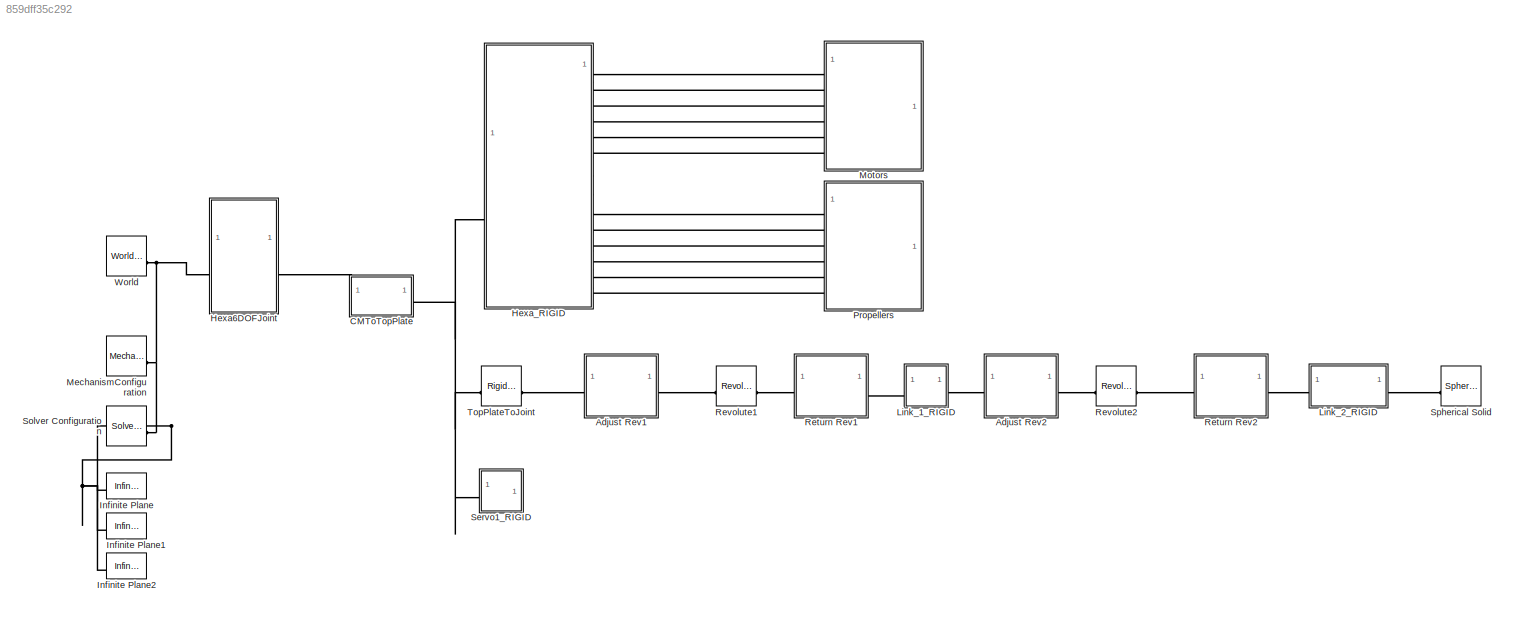
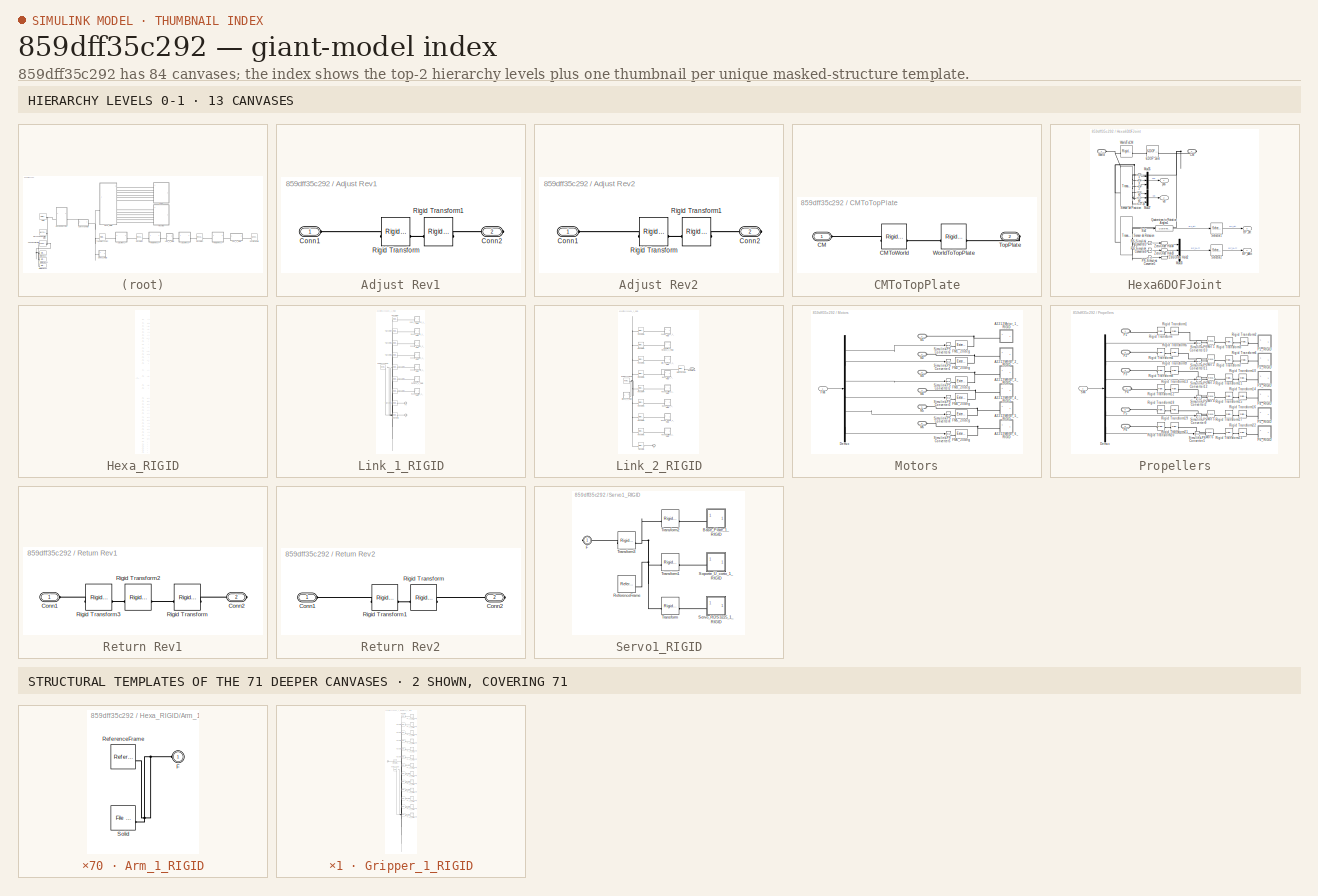
[diagram: thumbnail index - top-2 hierarchy levels (13 canvases) + 2 structural-template representatives of the remaining 71 canvases]
MODEL slx_859dff35c292
KIND model
CONFIG AbsTol = auto
CONFIG EnableMultiTasking = off
CONFIG FixedStep = auto
CONFIG MaxStep = auto
CONFIG MinStep = auto
CONFIG RelTol = 1e-3
CONFIG SampleTimeConstraint = Unconstrained
CONFIG SolverName = VariableStepAuto
CONFIG StartTime = 0.0
CONFIG StopTime = 0.0
WORKSPACE source: external: MATLAB File  (data not in archive)
BLOCK [SubSystem] Adjust Rev1
BLOCK [PMIOPort] Adjust Rev1/Conn1
  Side = Left
BLOCK [PMIOPort] Adjust Rev1/Conn2
  Port = 2
  Side = Right
BLOCK [Reference] Adjust Rev1/Rigid Transform  REF=sm_lib/Frames and
Transforms/Rigid
Transform
  SourceBlock = sm_lib/Frames and\nTransforms/Rigid\nTransform
  SourceType = Rigid\nTransform
BLOCK [Reference] Adjust Rev1/Rigid Transform1  REF=sm_lib/Frames and
Transforms/Rigid
Transform
  SourceBlock = sm_lib/Frames and\nTransforms/Rigid\nTransform
  SourceType = Rigid\nTransform
BLOCK [SubSystem] Adjust Rev2
BLOCK [PMIOPort] Adjust Rev2/Conn1
  Side = Left
BLOCK [PMIOPort] Adjust Rev2/Conn2
  Port = 2
  Side = Right
BLOCK [Reference] Adjust Rev2/Rigid Transform  REF=sm_lib/Frames and
Transforms/Rigid
Transform
  SourceBlock = sm_lib/Frames and\nTransforms/Rigid\nTransform
  SourceType = Rigid\nTransform
BLOCK [Reference] Adjust Rev2/Rigid Transform1  REF=sm_lib/Frames and
Transforms/Rigid
Transform
  SourceBlock = sm_lib/Frames and\nTransforms/Rigid\nTransform
  SourceType = Rigid\nTransform
BLOCK [SubSystem] CMToTopPlate
BLOCK [PMIOPort] CMToTopPlate/CM
  Side = Left
BLOCK [Reference] CMToTopPlate/CMToWorld  REF=sm_lib/Frames and
Transforms/Rigid
Transform
  NameLocation = top
  SourceBlock = sm_lib/Frames and\nTransforms/Rigid\nTransform
  SourceType = Rigid\nTransform
BLOCK [PMIOPort] CMToTopPlate/TopPlate
  Port = 2
  Side = Right
BLOCK [Reference] CMToTopPlate/WorldToTopPlate  REF=sm_lib/Frames and
Transforms/Rigid
Transform
  SourceBlock = sm_lib/Frames and\nTransforms/Rigid\nTransform
  SourceType = Rigid\nTransform
BLOCK [SubSystem] Hexa6DOFJoint
BLOCK [Reference] Hexa6DOFJoint/6-DOF Joint  REF=sm_lib/Joints/6-DOF Joint
  SourceBlock = sm_lib/Joints/6-DOF Joint
  SourceType = 6-DOF Joint
BLOCK [Outport] Hexa6DOFJoint/BF_att
  Port = 3
BLOCK [Outport] Hexa6DOFJoint/BF_dAtt
  Port = 4
BLOCK [PMIOPort] Hexa6DOFJoint/CM
  Port = 2
  Side = Right
BLOCK [Mux] Hexa6DOFJoint/Mux33
  DisplayOption = bar
  Inputs = 3
BLOCK [Mux] Hexa6DOFJoint/Mux35
  DisplayOption = bar
  Inputs = 3
BLOCK [Mux] Hexa6DOFJoint/Mux37
  DisplayOption = bar
  Inputs = 3
BLOCK [Reference] Hexa6DOFJoint/PS-Simulink Converter3  REF=nesl_utility/PS-Simulink
Converter
  SourceBlock = nesl_utility/PS-Simulink\nConverter
  SourceType = PS-Simulink\nConverter
BLOCK [Reference] Hexa6DOFJoint/PS-Simulink Converter4  REF=nesl_utility/PS-Simulink
Converter
  SourceBlock = nesl_utility/PS-Simulink\nConverter
  SourceType = PS-Simulink\nConverter
BLOCK [Reference] Hexa6DOFJoint/PS-Simulink Converter5  REF=nesl_utility/PS-Simulink
Converter
  SourceBlock = nesl_utility/PS-Simulink\nConverter
  SourceType = PS-Simulink\nConverter
BLOCK [Reference] Hexa6DOFJoint/Quaternions to Rotation Angles1  REF=sharedtransform/Quaternions to Rotation Angles
  AttributesFormatString = Rotation Order: %<rotationOrder>
  SourceBlock = sharedtransform/Quaternions to Rotation Angles
  SourceType = Quat2Ang
BLOCK [Selector] Hexa6DOFJoint/Selector1
  IndexOptions = Index vector (dialog)
  Indices = [3 2 1]
  InputPortWidth = 3
  OutputSizes = 1
BLOCK [Selector] Hexa6DOFJoint/Selector2
  IndexOptions = Index vector (dialog)
  Indices = [3 2 1]
  InputPortWidth = 3
  OutputSizes = 1
BLOCK [Reference] Hexa6DOFJoint/Sensor de Posicion  REF=sm_lib/Frames and
Transforms/Transform
Sensor
  SourceBlock = sm_lib/Frames and\nTransforms/Transform\nSensor
  SourceType = Transform\nSensor
BLOCK [Reference] Hexa6DOFJoint/Sensor de Rotacion  REF=sm_lib/Frames and
Transforms/Transform
Sensor
  SourceBlock = sm_lib/Frames and\nTransforms/Transform\nSensor
  SourceType = Transform\nSensor
BLOCK [Reference] Hexa6DOFJoint/Sx4  REF=nesl_utility/PS-Simulink
Converter
  NameLocation = top
  SourceBlock = nesl_utility/PS-Simulink\nConverter
  SourceType = PS-Simulink\nConverter
BLOCK [PMIOPort] Hexa6DOFJoint/World
  Side = Left
BLOCK [Reference] Hexa6DOFJoint/WorldToCM  REF=sm_lib/Frames and
Transforms/Rigid
Transform
  SourceBlock = sm_lib/Frames and\nTransforms/Rigid\nTransform
  SourceType = Rigid\nTransform
BLOCK [ZeroOrderHold] Hexa6DOFJoint/Zero-Order Hold2
  Commented = through
  NameLocation = right
  SampleTime = -1
BLOCK [ZeroOrderHold] Hexa6DOFJoint/Zero-Order Hold3
  Commented = through
  NameLocation = right
  SampleTime = -1
BLOCK [ZeroOrderHold] Hexa6DOFJoint/Zero-Order Hold4
  Commented = through
  NameLocation = right
  SampleTime = -1
BLOCK [Outport] Hexa6DOFJoint/pos
BLOCK [Outport] Hexa6DOFJoint/vel
  Port = 2
BLOCK [Reference] Hexa6DOFJoint/x  REF=nesl_utility/PS-Simulink
Converter
  NameLocation = top
  SourceBlock = nesl_utility/PS-Simulink\nConverter
  SourceType = PS-Simulink\nConverter
BLOCK [Reference] Hexa6DOFJoint/xp  REF=nesl_utility/PS-Simulink
Converter
  NameLocation = top
  SourceBlock = nesl_utility/PS-Simulink\nConverter
  SourceType = PS-Simulink\nConverter
BLOCK [Reference] Hexa6DOFJoint/y  REF=nesl_utility/PS-Simulink
Converter
  NameLocation = top
  SourceBlock = nesl_utility/PS-Simulink\nConverter
  SourceType = PS-Simulink\nConverter
BLOCK [Reference] Hexa6DOFJoint/yp  REF=nesl_utility/PS-Simulink
Converter
  NameLocation = top
  SourceBlock = nesl_utility/PS-Simulink\nConverter
  SourceType = PS-Simulink\nConverter
BLOCK [Reference] Hexa6DOFJoint/z  REF=nesl_utility/PS-Simulink
Converter
  NameLocation = top
  SourceBlock = nesl_utility/PS-Simulink\nConverter
  SourceType = PS-Simulink\nConverter
BLOCK [Reference] Hexa6DOFJoint/zp  REF=nesl_utility/PS-Simulink
Converter
  NameLocation = top
  SourceBlock = nesl_utility/PS-Simulink\nConverter
  SourceType = PS-Simulink\nConverter
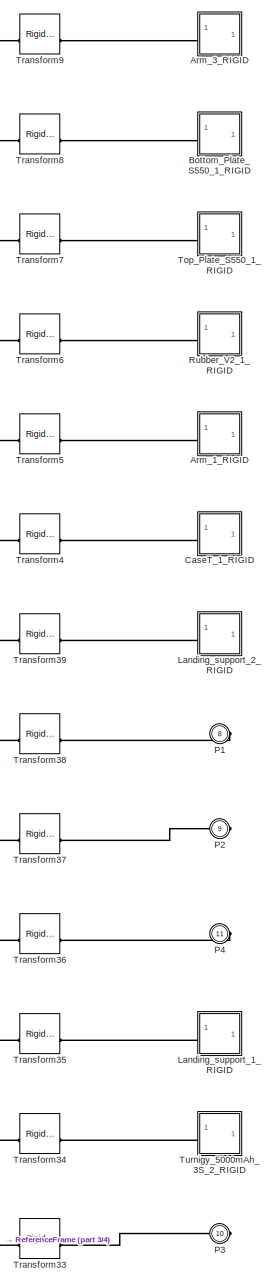
[diagram: Hexa_RIGID - part 1/4, top right region]
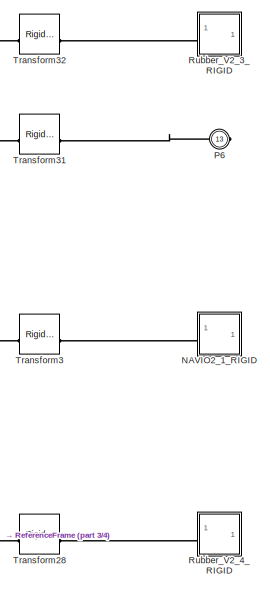
[diagram: Hexa_RIGID - part 2/4, middle right region]
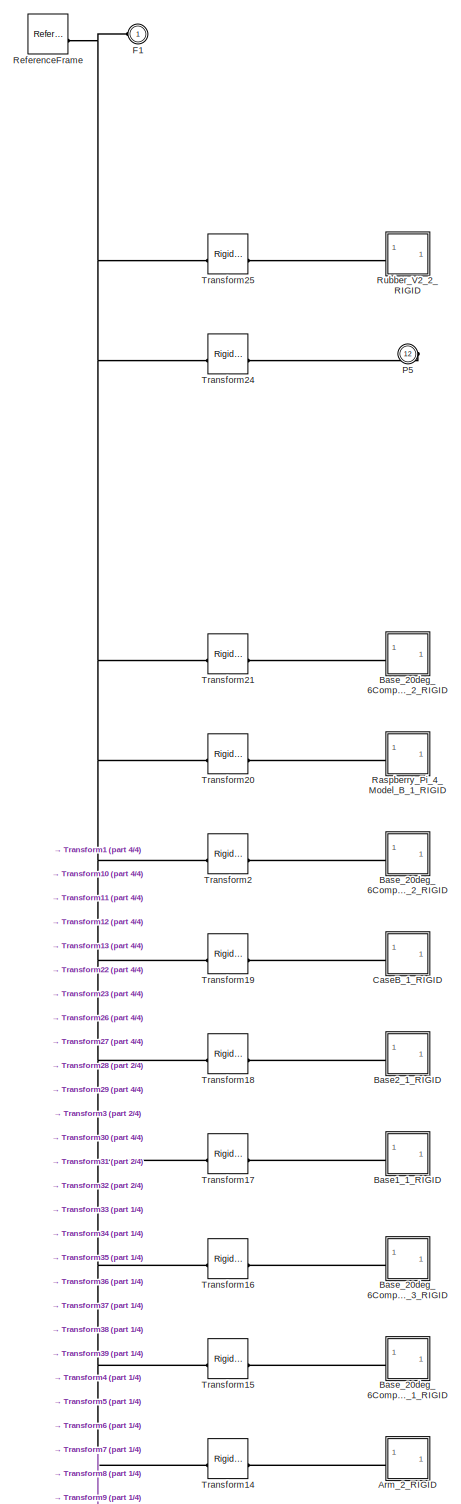
[diagram: Hexa_RIGID - part 3/4, full width, middle band]
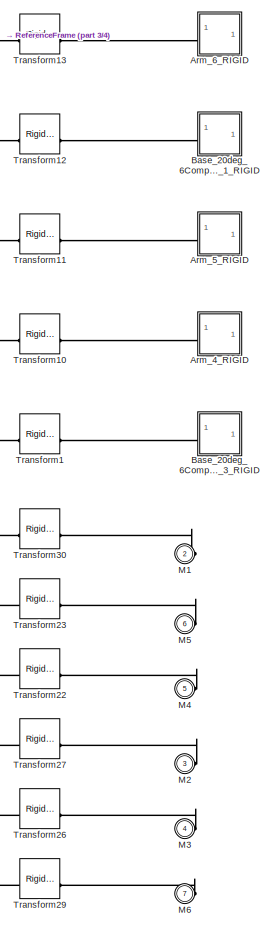
[diagram: Hexa_RIGID - part 4/4, bottom right region]
BLOCK [SubSystem] Hexa_RIGID
BLOCK [SubSystem] Hexa_RIGID/Arm_1_RIGID
BLOCK [PMIOPort] Hexa_RIGID/Arm_1_RIGID/F
  Side = Left
BLOCK [Reference] Hexa_RIGID/Arm_1_RIGID/ReferenceFrame  REF=sm_lib/Frames and
Transforms/Reference
Frame
  SourceBlock = sm_lib/Frames and\nTransforms/Reference\nFrame
  SourceType = Reference\nFrame
BLOCK [Reference] Hexa_RIGID/Arm_1_RIGID/Solid  REF=sm_lib/Body Elements/File Solid
  SourceBlock = sm_lib/Body Elements/File Solid
  SourceType = File Solid
BLOCK [SubSystem] Hexa_RIGID/Arm_2_RIGID
BLOCK [PMIOPort] Hexa_RIGID/Arm_2_RIGID/F
  Side = Left
BLOCK [Reference] Hexa_RIGID/Arm_2_RIGID/ReferenceFrame  REF=sm_lib/Frames and
Transforms/Reference
Frame
  SourceBlock = sm_lib/Frames and\nTransforms/Reference\nFrame
  SourceType = Reference\nFrame
BLOCK [Reference] Hexa_RIGID/Arm_2_RIGID/Solid  REF=sm_lib/Body Elements/File Solid
  SourceBlock = sm_lib/Body Elements/File Solid
  SourceType = File Solid
BLOCK [SubSystem] Hexa_RIGID/Arm_3_RIGID
BLOCK [PMIOPort] Hexa_RIGID/Arm_3_RIGID/F
  Side = Left
BLOCK [Reference] Hexa_RIGID/Arm_3_RIGID/ReferenceFrame  REF=sm_lib/Frames and
Transforms/Reference
Frame
  SourceBlock = sm_lib/Frames and\nTransforms/Reference\nFrame
  SourceType = Reference\nFrame
BLOCK [Reference] Hexa_RIGID/Arm_3_RIGID/Solid  REF=sm_lib/Body Elements/File Solid
  SourceBlock = sm_lib/Body Elements/File Solid
  SourceType = File Solid
BLOCK [SubSystem] Hexa_RIGID/Arm_4_RIGID
BLOCK [PMIOPort] Hexa_RIGID/Arm_4_RIGID/F
  Side = Left
BLOCK [Reference] Hexa_RIGID/Arm_4_RIGID/ReferenceFrame  REF=sm_lib/Frames and
Transforms/Reference
Frame
  SourceBlock = sm_lib/Frames and\nTransforms/Reference\nFrame
  SourceType = Reference\nFrame
BLOCK [Reference] Hexa_RIGID/Arm_4_RIGID/Solid  REF=sm_lib/Body Elements/File Solid
  SourceBlock = sm_lib/Body Elements/File Solid
  SourceType = File Solid
BLOCK [SubSystem] Hexa_RIGID/Arm_5_RIGID
BLOCK [PMIOPort] Hexa_RIGID/Arm_5_RIGID/F
  Side = Left
BLOCK [Reference] Hexa_RIGID/Arm_5_RIGID/ReferenceFrame  REF=sm_lib/Frames and
Transforms/Reference
Frame
  SourceBlock = sm_lib/Frames and\nTransforms/Reference\nFrame
  SourceType = Reference\nFrame
BLOCK [Reference] Hexa_RIGID/Arm_5_RIGID/Solid  REF=sm_lib/Body Elements/File Solid
  SourceBlock = sm_lib/Body Elements/File Solid
  SourceType = File Solid
BLOCK [SubSystem] Hexa_RIGID/Arm_6_RIGID
BLOCK [PMIOPort] Hexa_RIGID/Arm_6_RIGID/F
  Side = Left
BLOCK [Reference] Hexa_RIGID/Arm_6_RIGID/ReferenceFrame  REF=sm_lib/Frames and
Transforms/Reference
Frame
  SourceBlock = sm_lib/Frames and\nTransforms/Reference\nFrame
  SourceType = Reference\nFrame
BLOCK [Reference] Hexa_RIGID/Arm_6_RIGID/Solid  REF=sm_lib/Body Elements/File Solid
  SourceBlock = sm_lib/Body Elements/File Solid
  SourceType = File Solid
BLOCK [SubSystem] Hexa_RIGID/Base1_1_RIGID
BLOCK [PMIOPort] Hexa_RIGID/Base1_1_RIGID/F
  Side = Left
BLOCK [Reference] Hexa_RIGID/Base1_1_RIGID/ReferenceFrame  REF=sm_lib/Frames and
Transforms/Reference
Frame
  SourceBlock = sm_lib/Frames and\nTransforms/Reference\nFrame
  SourceType = Reference\nFrame
BLOCK [Reference] Hexa_RIGID/Base1_1_RIGID/Solid  REF=sm_lib/Body Elements/File Solid
  SourceBlock = sm_lib/Body Elements/File Solid
  SourceType = File Solid
BLOCK [SubSystem] Hexa_RIGID/Base2_1_RIGID
BLOCK [PMIOPort] Hexa_RIGID/Base2_1_RIGID/F
  Side = Left
BLOCK [Reference] Hexa_RIGID/Base2_1_RIGID/ReferenceFrame  REF=sm_lib/Frames and
Transforms/Reference
Frame
  SourceBlock = sm_lib/Frames and\nTransforms/Reference\nFrame
  SourceType = Reference\nFrame
BLOCK [Reference] Hexa_RIGID/Base2_1_RIGID/Solid  REF=sm_lib/Body Elements/File Solid
  SourceBlock = sm_lib/Body Elements/File Solid
  SourceType = File Solid
BLOCK [SubSystem] Hexa_RIGID/Base_20deg_6Compensation_Motor1_3_5_V2_1_RIGID
BLOCK [PMIOPort] Hexa_RIGID/Base_20deg_6Compensation_Motor1_3_5_V2_1_RIGID/F
  Side = Left
BLOCK [Reference] Hexa_RIGID/Base_20deg_6Compensation_Motor1_3_5_V2_1_RIGID/ReferenceFrame  REF=sm_lib/Frames and
Transforms/Reference
Frame
  SourceBlock = sm_lib/Frames and\nTransforms/Reference\nFrame
  SourceType = Reference\nFrame
BLOCK [Reference] Hexa_RIGID/Base_20deg_6Compensation_Motor1_3_5_V2_1_RIGID/Solid  REF=sm_lib/Body Elements/File Solid
  SourceBlock = sm_lib/Body Elements/File Solid
  SourceType = File Solid
BLOCK [SubSystem] Hexa_RIGID/Base_20deg_6Compensation_Motor1_3_5_V2_2_RIGID
BLOCK [PMIOPort] Hexa_RIGID/Base_20deg_6Compensation_Motor1_3_5_V2_2_RIGID/F
  Side = Left
BLOCK [Reference] Hexa_RIGID/Base_20deg_6Compensation_Motor1_3_5_V2_2_RIGID/ReferenceFrame  REF=sm_lib/Frames and
Transforms/Reference
Frame
  SourceBlock = sm_lib/Frames and\nTransforms/Reference\nFrame
  SourceType = Reference\nFrame
BLOCK [Reference] Hexa_RIGID/Base_20deg_6Compensation_Motor1_3_5_V2_2_RIGID/Solid  REF=sm_lib/Body Elements/File Solid
  SourceBlock = sm_lib/Body Elements/File Solid
  SourceType = File Solid
BLOCK [SubSystem] Hexa_RIGID/Base_20deg_6Compensation_Motor1_3_5_V2_3_RIGID
BLOCK [PMIOPort] Hexa_RIGID/Base_20deg_6Compensation_Motor1_3_5_V2_3_RIGID/F
  Side = Left
BLOCK [Reference] Hexa_RIGID/Base_20deg_6Compensation_Motor1_3_5_V2_3_RIGID/ReferenceFrame  REF=sm_lib/Frames and
Transforms/Reference
Frame
  SourceBlock = sm_lib/Frames and\nTransforms/Reference\nFrame
  SourceType = Reference\nFrame
BLOCK [Reference] Hexa_RIGID/Base_20deg_6Compensation_Motor1_3_5_V2_3_RIGID/Solid  REF=sm_lib/Body Elements/File Solid
  SourceBlock = sm_lib/Body Elements/File Solid
  SourceType = File Solid
BLOCK [SubSystem] Hexa_RIGID/Base_20deg_6Compensation_Motor2_4_6_V2_1_RIGID
BLOCK [PMIOPort] Hexa_RIGID/Base_20deg_6Compensation_Motor2_4_6_V2_1_RIGID/F
  Side = Left
BLOCK [Reference] Hexa_RIGID/Base_20deg_6Compensation_Motor2_4_6_V2_1_RIGID/ReferenceFrame  REF=sm_lib/Frames and
Transforms/Reference
Frame
  SourceBlock = sm_lib/Frames and\nTransforms/Reference\nFrame
  SourceType = Reference\nFrame
BLOCK [Reference] Hexa_RIGID/Base_20deg_6Compensation_Motor2_4_6_V2_1_RIGID/Solid  REF=sm_lib/Body Elements/File Solid
  SourceBlock = sm_lib/Body Elements/File Solid
  SourceType = File Solid
BLOCK [SubSystem] Hexa_RIGID/Base_20deg_6Compensation_Motor2_4_6_V2_2_RIGID
BLOCK [PMIOPort] Hexa_RIGID/Base_20deg_6Compensation_Motor2_4_6_V2_2_RIGID/F
  Side = Left
BLOCK [Reference] Hexa_RIGID/Base_20deg_6Compensation_Motor2_4_6_V2_2_RIGID/ReferenceFrame  REF=sm_lib/Frames and
Transforms/Reference
Frame
  SourceBlock = sm_lib/Frames and\nTransforms/Reference\nFrame
  SourceType = Reference\nFrame
BLOCK [Reference] Hexa_RIGID/Base_20deg_6Compensation_Motor2_4_6_V2_2_RIGID/Solid  REF=sm_lib/Body Elements/File Solid
  SourceBlock = sm_lib/Body Elements/File Solid
  SourceType = File Solid
BLOCK [SubSystem] Hexa_RIGID/Base_20deg_6Compensation_Motor2_4_6_V2_3_RIGID
BLOCK [PMIOPort] Hexa_RIGID/Base_20deg_6Compensation_Motor2_4_6_V2_3_RIGID/F
  Side = Left
BLOCK [Reference] Hexa_RIGID/Base_20deg_6Compensation_Motor2_4_6_V2_3_RIGID/ReferenceFrame  REF=sm_lib/Frames and
Transforms/Reference
Frame
  SourceBlock = sm_lib/Frames and\nTransforms/Reference\nFrame
  SourceType = Reference\nFrame
BLOCK [Reference] Hexa_RIGID/Base_20deg_6Compensation_Motor2_4_6_V2_3_RIGID/Solid  REF=sm_lib/Body Elements/File Solid
  SourceBlock = sm_lib/Body Elements/File Solid
  SourceType = File Solid
BLOCK [SubSystem] Hexa_RIGID/Bottom_Plate_S550_1_RIGID
BLOCK [PMIOPort] Hexa_RIGID/Bottom_Plate_S550_1_RIGID/F
  Side = Left
BLOCK [Reference] Hexa_RIGID/Bottom_Plate_S550_1_RIGID/ReferenceFrame  REF=sm_lib/Frames and
Transforms/Reference
Frame
  SourceBlock = sm_lib/Frames and\nTransforms/Reference\nFrame
  SourceType = Reference\nFrame
BLOCK [Reference] Hexa_RIGID/Bottom_Plate_S550_1_RIGID/Solid  REF=sm_lib/Body Elements/File Solid
  SourceBlock = sm_lib/Body Elements/File Solid
  SourceType = File Solid
BLOCK [SubSystem] Hexa_RIGID/CaseB_1_RIGID
BLOCK [PMIOPort] Hexa_RIGID/CaseB_1_RIGID/F
  Side = Left
BLOCK [Reference] Hexa_RIGID/CaseB_1_RIGID/ReferenceFrame  REF=sm_lib/Frames and
Transforms/Reference
Frame
  SourceBlock = sm_lib/Frames and\nTransforms/Reference\nFrame
  SourceType = Reference\nFrame
BLOCK [Reference] Hexa_RIGID/CaseB_1_RIGID/Solid  REF=sm_lib/Body Elements/File Solid
  SourceBlock = sm_lib/Body Elements/File Solid
  SourceType = File Solid
BLOCK [SubSystem] Hexa_RIGID/CaseT_1_RIGID
BLOCK [PMIOPort] Hexa_RIGID/CaseT_1_RIGID/F
  Side = Left
BLOCK [Reference] Hexa_RIGID/CaseT_1_RIGID/ReferenceFrame  REF=sm_lib/Frames and
Transforms/Reference
Frame
  SourceBlock = sm_lib/Frames and\nTransforms/Reference\nFrame
  SourceType = Reference\nFrame
BLOCK [Reference] Hexa_RIGID/CaseT_1_RIGID/Solid  REF=sm_lib/Body Elements/File Solid
  SourceBlock = sm_lib/Body Elements/File Solid
  SourceType = File Solid
BLOCK [PMIOPort] Hexa_RIGID/F1
  Side = Left
BLOCK [SubSystem] Hexa_RIGID/Landing_support_1_RIGID
BLOCK [PMIOPort] Hexa_RIGID/Landing_support_1_RIGID/F
  Side = Left
BLOCK [Reference] Hexa_RIGID/Landing_support_1_RIGID/ReferenceFrame  REF=sm_lib/Frames and
Transforms/Reference
Frame
  SourceBlock = sm_lib/Frames and\nTransforms/Reference\nFrame
  SourceType = Reference\nFrame
BLOCK [Reference] Hexa_RIGID/Landing_support_1_RIGID/Solid  REF=sm_lib/Body Elements/File Solid
  SourceBlock = sm_lib/Body Elements/File Solid
  SourceType = File Solid
BLOCK [SubSystem] Hexa_RIGID/Landing_support_2_RIGID
BLOCK [PMIOPort] Hexa_RIGID/Landing_support_2_RIGID/F
  Side = Left
BLOCK [Reference] Hexa_RIGID/Landing_support_2_RIGID/ReferenceFrame  REF=sm_lib/Frames and
Transforms/Reference
Frame
  SourceBlock = sm_lib/Frames and\nTransforms/Reference\nFrame
  SourceType = Reference\nFrame
BLOCK [Reference] Hexa_RIGID/Landing_support_2_RIGID/Solid  REF=sm_lib/Body Elements/File Solid
  SourceBlock = sm_lib/Body Elements/File Solid
  SourceType = File Solid
BLOCK [PMIOPort] Hexa_RIGID/M1
  Port = 2
  Side = Right
BLOCK [PMIOPort] Hexa_RIGID/M2
  Port = 3
  Side = Right
BLOCK [PMIOPort] Hexa_RIGID/M3
  Port = 4
  Side = Right
BLOCK [PMIOPort] Hexa_RIGID/M4
  Port = 5
  Side = Right
BLOCK [PMIOPort] Hexa_RIGID/M5
  Port = 6
  Side = Right
BLOCK [PMIOPort] Hexa_RIGID/M6
  Port = 7
  Side = Right
BLOCK [SubSystem] Hexa_RIGID/NAVIO2_1_RIGID
BLOCK [PMIOPort] Hexa_RIGID/NAVIO2_1_RIGID/F
  Side = Left
BLOCK [Reference] Hexa_RIGID/NAVIO2_1_RIGID/ReferenceFrame  REF=sm_lib/Frames and
Transforms/Reference
Frame
  SourceBlock = sm_lib/Frames and\nTransforms/Reference\nFrame
  SourceType = Reference\nFrame
BLOCK [Reference] Hexa_RIGID/NAVIO2_1_RIGID/Solid  REF=sm_lib/Body Elements/File Solid
  SourceBlock = sm_lib/Body Elements/File Solid
  SourceType = File Solid
BLOCK [PMIOPort] Hexa_RIGID/P1
  Port = 8
  Side = Right
BLOCK [PMIOPort] Hexa_RIGID/P2
  Port = 9
  Side = Right
BLOCK [PMIOPort] Hexa_RIGID/P3
  Port = 10
  Side = Right
BLOCK [PMIOPort] Hexa_RIGID/P4
  Port = 11
  Side = Right
BLOCK [PMIOPort] Hexa_RIGID/P5
  Port = 12
  Side = Right
BLOCK [PMIOPort] Hexa_RIGID/P6
  Port = 13
  Side = Right
BLOCK [SubSystem] Hexa_RIGID/Raspberry_Pi_4_Model_B_1_RIGID
BLOCK [PMIOPort] Hexa_RIGID/Raspberry_Pi_4_Model_B_1_RIGID/F
  Side = Left
BLOCK [Reference] Hexa_RIGID/Raspberry_Pi_4_Model_B_1_RIGID/ReferenceFrame  REF=sm_lib/Frames and
Transforms/Reference
Frame
  SourceBlock = sm_lib/Frames and\nTransforms/Reference\nFrame
  SourceType = Reference\nFrame
BLOCK [Reference] Hexa_RIGID/Raspberry_Pi_4_Model_B_1_RIGID/Solid  REF=sm_lib/Body Elements/File Solid
  SourceBlock = sm_lib/Body Elements/File Solid
  SourceType = File Solid
BLOCK [Reference] Hexa_RIGID/ReferenceFrame  REF=sm_lib/Frames and
Transforms/Reference
Frame
  SourceBlock = sm_lib/Frames and\nTransforms/Reference\nFrame
  SourceType = Reference\nFrame
BLOCK [SubSystem] Hexa_RIGID/Rubber_V2_1_RIGID
BLOCK [PMIOPort] Hexa_RIGID/Rubber_V2_1_RIGID/F
  Side = Left
BLOCK [Reference] Hexa_RIGID/Rubber_V2_1_RIGID/ReferenceFrame  REF=sm_lib/Frames and
Transforms/Reference
Frame
  SourceBlock = sm_lib/Frames and\nTransforms/Reference\nFrame
  SourceType = Reference\nFrame
BLOCK [Reference] Hexa_RIGID/Rubber_V2_1_RIGID/Solid  REF=sm_lib/Body Elements/File Solid
  SourceBlock = sm_lib/Body Elements/File Solid
  SourceType = File Solid
BLOCK [SubSystem] Hexa_RIGID/Rubber_V2_2_RIGID
BLOCK [PMIOPort] Hexa_RIGID/Rubber_V2_2_RIGID/F
  Side = Left
BLOCK [Reference] Hexa_RIGID/Rubber_V2_2_RIGID/ReferenceFrame  REF=sm_lib/Frames and
Transforms/Reference
Frame
  SourceBlock = sm_lib/Frames and\nTransforms/Reference\nFrame
  SourceType = Reference\nFrame
BLOCK [Reference] Hexa_RIGID/Rubber_V2_2_RIGID/Solid  REF=sm_lib/Body Elements/File Solid
  SourceBlock = sm_lib/Body Elements/File Solid
  SourceType = File Solid
BLOCK [SubSystem] Hexa_RIGID/Rubber_V2_3_RIGID
BLOCK [PMIOPort] Hexa_RIGID/Rubber_V2_3_RIGID/F
  Side = Left
BLOCK [Reference] Hexa_RIGID/Rubber_V2_3_RIGID/ReferenceFrame  REF=sm_lib/Frames and
Transforms/Reference
Frame
  SourceBlock = sm_lib/Frames and\nTransforms/Reference\nFrame
  SourceType = Reference\nFrame
BLOCK [Reference] Hexa_RIGID/Rubber_V2_3_RIGID/Solid  REF=sm_lib/Body Elements/File Solid
  SourceBlock = sm_lib/Body Elements/File Solid
  SourceType = File Solid
BLOCK [SubSystem] Hexa_RIGID/Rubber_V2_4_RIGID
BLOCK [PMIOPort] Hexa_RIGID/Rubber_V2_4_RIGID/F
  Side = Left
BLOCK [Reference] Hexa_RIGID/Rubber_V2_4_RIGID/ReferenceFrame  REF=sm_lib/Frames and
Transforms/Reference
Frame
  SourceBlock = sm_lib/Frames and\nTransforms/Reference\nFrame
  SourceType = Reference\nFrame
BLOCK [Reference] Hexa_RIGID/Rubber_V2_4_RIGID/Solid  REF=sm_lib/Body Elements/File Solid
  SourceBlock = sm_lib/Body Elements/File Solid
  SourceType = File Solid
BLOCK [SubSystem] Hexa_RIGID/Top_Plate_S550_1_RIGID
BLOCK [PMIOPort] Hexa_RIGID/Top_Plate_S550_1_RIGID/F
  Side = Left
BLOCK [Reference] Hexa_RIGID/Top_Plate_S550_1_RIGID/ReferenceFrame  REF=sm_lib/Frames and
Transforms/Reference
Frame
  SourceBlock = sm_lib/Frames and\nTransforms/Reference\nFrame
  SourceType = Reference\nFrame
BLOCK [Reference] Hexa_RIGID/Top_Plate_S550_1_RIGID/Solid  REF=sm_lib/Body Elements/File Solid
  SourceBlock = sm_lib/Body Elements/File Solid
  SourceType = File Solid
BLOCK [Reference] Hexa_RIGID/Transform1  REF=sm_lib/Frames and
Transforms/Rigid
Transform
  SourceBlock = sm_lib/Frames and\nTransforms/Rigid\nTransform
  SourceType = Rigid\nTransform
BLOCK [Reference] Hexa_RIGID/Transform10  REF=sm_lib/Frames and
Transforms/Rigid
Transform
  SourceBlock = sm_lib/Frames and\nTransforms/Rigid\nTransform
  SourceType = Rigid\nTransform
BLOCK [Reference] Hexa_RIGID/Transform11  REF=sm_lib/Frames and
Transforms/Rigid
Transform
  SourceBlock = sm_lib/Frames and\nTransforms/Rigid\nTransform
  SourceType = Rigid\nTransform
BLOCK [Reference] Hexa_RIGID/Transform12  REF=sm_lib/Frames and
Transforms/Rigid
Transform
  SourceBlock = sm_lib/Frames and\nTransforms/Rigid\nTransform
  SourceType = Rigid\nTransform
BLOCK [Reference] Hexa_RIGID/Transform13  REF=sm_lib/Frames and
Transforms/Rigid
Transform
  SourceBlock = sm_lib/Frames and\nTransforms/Rigid\nTransform
  SourceType = Rigid\nTransform
BLOCK [Reference] Hexa_RIGID/Transform14  REF=sm_lib/Frames and
Transforms/Rigid
Transform
  SourceBlock = sm_lib/Frames and\nTransforms/Rigid\nTransform
  SourceType = Rigid\nTransform
BLOCK [Reference] Hexa_RIGID/Transform15  REF=sm_lib/Frames and
Transforms/Rigid
Transform
  SourceBlock = sm_lib/Frames and\nTransforms/Rigid\nTransform
  SourceType = Rigid\nTransform
BLOCK [Reference] Hexa_RIGID/Transform16  REF=sm_lib/Frames and
Transforms/Rigid
Transform
  SourceBlock = sm_lib/Frames and\nTransforms/Rigid\nTransform
  SourceType = Rigid\nTransform
BLOCK [Reference] Hexa_RIGID/Transform17  REF=sm_lib/Frames and
Transforms/Rigid
Transform
  SourceBlock = sm_lib/Frames and\nTransforms/Rigid\nTransform
  SourceType = Rigid\nTransform
BLOCK [Reference] Hexa_RIGID/Transform18  REF=sm_lib/Frames and
Transforms/Rigid
Transform
  SourceBlock = sm_lib/Frames and\nTransforms/Rigid\nTransform
  SourceType = Rigid\nTransform
BLOCK [Reference] Hexa_RIGID/Transform19  REF=sm_lib/Frames and
Transforms/Rigid
Transform
  SourceBlock = sm_lib/Frames and\nTransforms/Rigid\nTransform
  SourceType = Rigid\nTransform
BLOCK [Reference] Hexa_RIGID/Transform2  REF=sm_lib/Frames and
Transforms/Rigid
Transform
  SourceBlock = sm_lib/Frames and\nTransforms/Rigid\nTransform
  SourceType = Rigid\nTransform
BLOCK [Reference] Hexa_RIGID/Transform20  REF=sm_lib/Frames and
Transforms/Rigid
Transform
  SourceBlock = sm_lib/Frames and\nTransforms/Rigid\nTransform
  SourceType = Rigid\nTransform
BLOCK [Reference] Hexa_RIGID/Transform21  REF=sm_lib/Frames and
Transforms/Rigid
Transform
  SourceBlock = sm_lib/Frames and\nTransforms/Rigid\nTransform
  SourceType = Rigid\nTransform
BLOCK [Reference] Hexa_RIGID/Transform22  REF=sm_lib/Frames and
Transforms/Rigid
Transform
  SourceBlock = sm_lib/Frames and\nTransforms/Rigid\nTransform
  SourceType = Rigid\nTransform
BLOCK [Reference] Hexa_RIGID/Transform23  REF=sm_lib/Frames and
Transforms/Rigid
Transform
  SourceBlock = sm_lib/Frames and\nTransforms/Rigid\nTransform
  SourceType = Rigid\nTransform
BLOCK [Reference] Hexa_RIGID/Transform24  REF=sm_lib/Frames and
Transforms/Rigid
Transform
  SourceBlock = sm_lib/Frames and\nTransforms/Rigid\nTransform
  SourceType = Rigid\nTransform
BLOCK [Reference] Hexa_RIGID/Transform25  REF=sm_lib/Frames and
Transforms/Rigid
Transform
  SourceBlock = sm_lib/Frames and\nTransforms/Rigid\nTransform
  SourceType = Rigid\nTransform
BLOCK [Reference] Hexa_RIGID/Transform26  REF=sm_lib/Frames and
Transforms/Rigid
Transform
  SourceBlock = sm_lib/Frames and\nTransforms/Rigid\nTransform
  SourceType = Rigid\nTransform
BLOCK [Reference] Hexa_RIGID/Transform27  REF=sm_lib/Frames and
Transforms/Rigid
Transform
  SourceBlock = sm_lib/Frames and\nTransforms/Rigid\nTransform
  SourceType = Rigid\nTransform
BLOCK [Reference] Hexa_RIGID/Transform28  REF=sm_lib/Frames and
Transforms/Rigid
Transform
  SourceBlock = sm_lib/Frames and\nTransforms/Rigid\nTransform
  SourceType = Rigid\nTransform
BLOCK [Reference] Hexa_RIGID/Transform29  REF=sm_lib/Frames and
Transforms/Rigid
Transform
  SourceBlock = sm_lib/Frames and\nTransforms/Rigid\nTransform
  SourceType = Rigid\nTransform
BLOCK [Reference] Hexa_RIGID/Transform3  REF=sm_lib/Frames and
Transforms/Rigid
Transform
  SourceBlock = sm_lib/Frames and\nTransforms/Rigid\nTransform
  SourceType = Rigid\nTransform
BLOCK [Reference] Hexa_RIGID/Transform30  REF=sm_lib/Frames and
Transforms/Rigid
Transform
  SourceBlock = sm_lib/Frames and\nTransforms/Rigid\nTransform
  SourceType = Rigid\nTransform
BLOCK [Reference] Hexa_RIGID/Transform31  REF=sm_lib/Frames and
Transforms/Rigid
Transform
  SourceBlock = sm_lib/Frames and\nTransforms/Rigid\nTransform
  SourceType = Rigid\nTransform
BLOCK [Reference] Hexa_RIGID/Transform32  REF=sm_lib/Frames and
Transforms/Rigid
Transform
  SourceBlock = sm_lib/Frames and\nTransforms/Rigid\nTransform
  SourceType = Rigid\nTransform
BLOCK [Reference] Hexa_RIGID/Transform33  REF=sm_lib/Frames and
Transforms/Rigid
Transform
  SourceBlock = sm_lib/Frames and\nTransforms/Rigid\nTransform
  SourceType = Rigid\nTransform
BLOCK [Reference] Hexa_RIGID/Transform34  REF=sm_lib/Frames and
Transforms/Rigid
Transform
  SourceBlock = sm_lib/Frames and\nTransforms/Rigid\nTransform
  SourceType = Rigid\nTransform
BLOCK [Reference] Hexa_RIGID/Transform35  REF=sm_lib/Frames and
Transforms/Rigid
Transform
  SourceBlock = sm_lib/Frames and\nTransforms/Rigid\nTransform
  SourceType = Rigid\nTransform
BLOCK [Reference] Hexa_RIGID/Transform36  REF=sm_lib/Frames and
Transforms/Rigid
Transform
  SourceBlock = sm_lib/Frames and\nTransforms/Rigid\nTransform
  SourceType = Rigid\nTransform
BLOCK [Reference] Hexa_RIGID/Transform37  REF=sm_lib/Frames and
Transforms/Rigid
Transform
  SourceBlock = sm_lib/Frames and\nTransforms/Rigid\nTransform
  SourceType = Rigid\nTransform
BLOCK [Reference] Hexa_RIGID/Transform38  REF=sm_lib/Frames and
Transforms/Rigid
Transform
  SourceBlock = sm_lib/Frames and\nTransforms/Rigid\nTransform
  SourceType = Rigid\nTransform
BLOCK [Reference] Hexa_RIGID/Transform39  REF=sm_lib/Frames and
Transforms/Rigid
Transform
  SourceBlock = sm_lib/Frames and\nTransforms/Rigid\nTransform
  SourceType = Rigid\nTransform
BLOCK [Reference] Hexa_RIGID/Transform4  REF=sm_lib/Frames and
Transforms/Rigid
Transform
  SourceBlock = sm_lib/Frames and\nTransforms/Rigid\nTransform
  SourceType = Rigid\nTransform
BLOCK [Reference] Hexa_RIGID/Transform5  REF=sm_lib/Frames and
Transforms/Rigid
Transform
  SourceBlock = sm_lib/Frames and\nTransforms/Rigid\nTransform
  SourceType = Rigid\nTransform
BLOCK [Reference] Hexa_RIGID/Transform6  REF=sm_lib/Frames and
Transforms/Rigid
Transform
  SourceBlock = sm_lib/Frames and\nTransforms/Rigid\nTransform
  SourceType = Rigid\nTransform
BLOCK [Reference] Hexa_RIGID/Transform7  REF=sm_lib/Frames and
Transforms/Rigid
Transform
  SourceBlock = sm_lib/Frames and\nTransforms/Rigid\nTransform
  SourceType = Rigid\nTransform
BLOCK [Reference] Hexa_RIGID/Transform8  REF=sm_lib/Frames and
Transforms/Rigid
Transform
  SourceBlock = sm_lib/Frames and\nTransforms/Rigid\nTransform
  SourceType = Rigid\nTransform
BLOCK [Reference] Hexa_RIGID/Transform9  REF=sm_lib/Frames and
Transforms/Rigid
Transform
  SourceBlock = sm_lib/Frames and\nTransforms/Rigid\nTransform
  SourceType = Rigid\nTransform
BLOCK [SubSystem] Hexa_RIGID/Turnigy_5000mAh_3S_2_RIGID
BLOCK [PMIOPort] Hexa_RIGID/Turnigy_5000mAh_3S_2_RIGID/F
  Side = Left
BLOCK [Reference] Hexa_RIGID/Turnigy_5000mAh_3S_2_RIGID/ReferenceFrame  REF=sm_lib/Frames and
Transforms/Reference
Frame
  SourceBlock = sm_lib/Frames and\nTransforms/Reference\nFrame
  SourceType = Reference\nFrame
BLOCK [Reference] Hexa_RIGID/Turnigy_5000mAh_3S_2_RIGID/Solid  REF=sm_lib/Body Elements/File Solid
  SourceBlock = sm_lib/Body Elements/File Solid
  SourceType = File Solid
BLOCK [Reference] Infinite Plane  REF=sm_lib/Curves and Surfaces/Infinite Plane
  SourceBlock = sm_lib/Curves and Surfaces/Infinite Plane
  SourceType = Infinite Plane
BLOCK [Reference] Infinite Plane1  REF=sm_lib/Curves and Surfaces/Infinite Plane
  SourceBlock = sm_lib/Curves and Surfaces/Infinite Plane
  SourceType = Infinite Plane
BLOCK [Reference] Infinite Plane2  REF=sm_lib/Curves and Surfaces/Infinite Plane
  SourceBlock = sm_lib/Curves and Surfaces/Infinite Plane
  SourceType = Infinite Plane
BLOCK [SubSystem] Link_1_RIGID
BLOCK [PMIOPort] Link_1_RIGID/F
  Port = 2
  Side = Right
BLOCK [PMIOPort] Link_1_RIGID/F1
  Side = Left
BLOCK [Reference] Link_1_RIGID/ReferenceFrame  REF=sm_lib/Frames and
Transforms/Reference
Frame
  SourceBlock = sm_lib/Frames and\nTransforms/Reference\nFrame
  SourceType = Reference\nFrame
BLOCK [SubSystem] Link_1_RIGID/Rueda_abajo_1_RIGID
BLOCK [PMIOPort] Link_1_RIGID/Rueda_abajo_1_RIGID/F
  Side = Left
BLOCK [Reference] Link_1_RIGID/Rueda_abajo_1_RIGID/ReferenceFrame  REF=sm_lib/Frames and
Transforms/Reference
Frame
  SourceBlock = sm_lib/Frames and\nTransforms/Reference\nFrame
  SourceType = Reference\nFrame
BLOCK [Reference] Link_1_RIGID/Rueda_abajo_1_RIGID/Solid  REF=sm_lib/Body Elements/File Solid
  SourceBlock = sm_lib/Body Elements/File Solid
  SourceType = File Solid
BLOCK [SubSystem] Link_1_RIGID/Rueda_arriba_1_RIGID
BLOCK [PMIOPort] Link_1_RIGID/Rueda_arriba_1_RIGID/F
  Side = Left
BLOCK [Reference] Link_1_RIGID/Rueda_arriba_1_RIGID/ReferenceFrame  REF=sm_lib/Frames and
Transforms/Reference
Frame
  SourceBlock = sm_lib/Frames and\nTransforms/Reference\nFrame
  SourceType = Reference\nFrame
BLOCK [Reference] Link_1_RIGID/Rueda_arriba_1_RIGID/Solid  REF=sm_lib/Body Elements/File Solid
  SourceBlock = sm_lib/Body Elements/File Solid
  SourceType = File Solid
BLOCK [SubSystem] Link_1_RIGID/Servo_RDS3225_1_RIGID
BLOCK [PMIOPort] Link_1_RIGID/Servo_RDS3225_1_RIGID/F
  Side = Left
BLOCK [Reference] Link_1_RIGID/Servo_RDS3225_1_RIGID/ReferenceFrame  REF=sm_lib/Frames and
Transforms/Reference
Frame
  SourceBlock = sm_lib/Frames and\nTransforms/Reference\nFrame
  SourceType = Reference\nFrame
BLOCK [Reference] Link_1_RIGID/Servo_RDS3225_1_RIGID/Solid  REF=sm_lib/Body Elements/File Solid
  SourceBlock = sm_lib/Body Elements/File Solid
  SourceType = File Solid
BLOCK [SubSystem] Link_1_RIGID/Soporte_U_corto_1_RIGID
BLOCK [PMIOPort] Link_1_RIGID/Soporte_U_corto_1_RIGID/F
  Side = Left
BLOCK [Reference] Link_1_RIGID/Soporte_U_corto_1_RIGID/ReferenceFrame  REF=sm_lib/Frames and
Transforms/Reference
Frame
  SourceBlock = sm_lib/Frames and\nTransforms/Reference\nFrame
  SourceType = Reference\nFrame
BLOCK [Reference] Link_1_RIGID/Soporte_U_corto_1_RIGID/Solid  REF=sm_lib/Body Elements/File Solid
  SourceBlock = sm_lib/Body Elements/File Solid
  SourceType = File Solid
BLOCK [SubSystem] Link_1_RIGID/Soporte_U_largo_1_RIGID
BLOCK [PMIOPort] Link_1_RIGID/Soporte_U_largo_1_RIGID/F
  Side = Left
BLOCK [Reference] Link_1_RIGID/Soporte_U_largo_1_RIGID/ReferenceFrame  REF=sm_lib/Frames and
Transforms/Reference
Frame
  SourceBlock = sm_lib/Frames and\nTransforms/Reference\nFrame
  SourceType = Reference\nFrame
BLOCK [Reference] Link_1_RIGID/Soporte_U_largo_1_RIGID/Solid  REF=sm_lib/Body Elements/File Solid
  SourceBlock = sm_lib/Body Elements/File Solid
  SourceType = File Solid
BLOCK [SubSystem] Link_1_RIGID/Soporte_U_largo_2_RIGID
BLOCK [PMIOPort] Link_1_RIGID/Soporte_U_largo_2_RIGID/F
  Side = Left
BLOCK [Reference] Link_1_RIGID/Soporte_U_largo_2_RIGID/ReferenceFrame  REF=sm_lib/Frames and
Transforms/Reference
Frame
  SourceBlock = sm_lib/Frames and\nTransforms/Reference\nFrame
  SourceType = Reference\nFrame
BLOCK [Reference] Link_1_RIGID/Soporte_U_largo_2_RIGID/Solid  REF=sm_lib/Body Elements/File Solid
  SourceBlock = sm_lib/Body Elements/File Solid
  SourceType = File Solid
BLOCK [SubSystem] Link_1_RIGID/Soporte_U_mediano_1_RIGID
BLOCK [PMIOPort] Link_1_RIGID/Soporte_U_mediano_1_RIGID/F
  Side = Left
BLOCK [Reference] Link_1_RIGID/Soporte_U_mediano_1_RIGID/ReferenceFrame  REF=sm_lib/Frames and
Transforms/Reference
Frame
  SourceBlock = sm_lib/Frames and\nTransforms/Reference\nFrame
  SourceType = Reference\nFrame
BLOCK [Reference] Link_1_RIGID/Soporte_U_mediano_1_RIGID/Solid  REF=sm_lib/Body Elements/File Solid
  SourceBlock = sm_lib/Body Elements/File Solid
  SourceType = File Solid
BLOCK [Reference] Link_1_RIGID/Transform  REF=sm_lib/Frames and
Transforms/Rigid
Transform
  SourceBlock = sm_lib/Frames and\nTransforms/Rigid\nTransform
  SourceType = Rigid\nTransform
BLOCK [Reference] Link_1_RIGID/Transform1  REF=sm_lib/Frames and
Transforms/Rigid
Transform
  SourceBlock = sm_lib/Frames and\nTransforms/Rigid\nTransform
  SourceType = Rigid\nTransform
BLOCK [Reference] Link_1_RIGID/Transform2  REF=sm_lib/Frames and
Transforms/Rigid
Transform
  SourceBlock = sm_lib/Frames and\nTransforms/Rigid\nTransform
  SourceType = Rigid\nTransform
BLOCK [Reference] Link_1_RIGID/Transform3  REF=sm_lib/Frames and
Transforms/Rigid
Transform
  SourceBlock = sm_lib/Frames and\nTransforms/Rigid\nTransform
  SourceType = Rigid\nTransform
BLOCK [Reference] Link_1_RIGID/Transform4  REF=sm_lib/Frames and
Transforms/Rigid
Transform
  SourceBlock = sm_lib/Frames and\nTransforms/Rigid\nTransform
  SourceType = Rigid\nTransform
BLOCK [Reference] Link_1_RIGID/Transform5  REF=sm_lib/Frames and
Transforms/Rigid
Transform
  SourceBlock = sm_lib/Frames and\nTransforms/Rigid\nTransform
  SourceType = Rigid\nTransform
BLOCK [Reference] Link_1_RIGID/Transform6  REF=sm_lib/Frames and
Transforms/Rigid
Transform
  SourceBlock = sm_lib/Frames and\nTransforms/Rigid\nTransform
  SourceType = Rigid\nTransform
BLOCK [Reference] Link_1_RIGID/Transform7  REF=sm_lib/Frames and
Transforms/Rigid
Transform
  SourceBlock = sm_lib/Frames and\nTransforms/Rigid\nTransform
  SourceType = Rigid\nTransform
BLOCK [Reference] Link_1_RIGID/Transform8  REF=sm_lib/Frames and
Transforms/Rigid
Transform
  SourceBlock = sm_lib/Frames and\nTransforms/Rigid\nTransform
  SourceType = Rigid\nTransform
BLOCK [SubSystem] Link_2_RIGID
BLOCK [SubSystem] Link_2_RIGID/Base_tubo_1_RIGID
BLOCK [PMIOPort] Link_2_RIGID/Base_tubo_1_RIGID/F
  Side = Left
BLOCK [Reference] Link_2_RIGID/Base_tubo_1_RIGID/ReferenceFrame  REF=sm_lib/Frames and
Transforms/Reference
Frame
  SourceBlock = sm_lib/Frames and\nTransforms/Reference\nFrame
  SourceType = Reference\nFrame
BLOCK [Reference] Link_2_RIGID/Base_tubo_1_RIGID/Solid  REF=sm_lib/Body Elements/File Solid
  SourceBlock = sm_lib/Body Elements/File Solid
  SourceType = File Solid
BLOCK [SubSystem] Link_2_RIGID/Base_tubo_2_RIGID
BLOCK [PMIOPort] Link_2_RIGID/Base_tubo_2_RIGID/F
  Side = Left
BLOCK [Reference] Link_2_RIGID/Base_tubo_2_RIGID/ReferenceFrame  REF=sm_lib/Frames and
Transforms/Reference
Frame
  SourceBlock = sm_lib/Frames and\nTransforms/Reference\nFrame
  SourceType = Reference\nFrame
BLOCK [Reference] Link_2_RIGID/Base_tubo_2_RIGID/Solid  REF=sm_lib/Body Elements/File Solid
  SourceBlock = sm_lib/Body Elements/File Solid
  SourceType = File Solid
BLOCK [SubSystem] Link_2_RIGID/Cuerpo_Tubo_1_RIGID
BLOCK [PMIOPort] Link_2_RIGID/Cuerpo_Tubo_1_RIGID/F
  Side = Left
BLOCK [Reference] Link_2_RIGID/Cuerpo_Tubo_1_RIGID/ReferenceFrame  REF=sm_lib/Frames and
Transforms/Reference
Frame
  SourceBlock = sm_lib/Frames and\nTransforms/Reference\nFrame
  SourceType = Reference\nFrame
BLOCK [Reference] Link_2_RIGID/Cuerpo_Tubo_1_RIGID/Solid  REF=sm_lib/Body Elements/File Solid
  SourceBlock = sm_lib/Body Elements/File Solid
  SourceType = File Solid
BLOCK [PMIOPort] Link_2_RIGID/EndEffector
  Port = 2
  Side = Right
BLOCK [PMIOPort] Link_2_RIGID/F
  Side = Left
BLOCK [SubSystem] Link_2_RIGID/Gripper_1_RIGID
BLOCK [PMIOPort] Link_2_RIGID/Gripper_1_RIGID/F
  Side = Right
BLOCK [SubSystem] Link_2_RIGID/Gripper_1_RIGID/Fix_1_1_Ref_Capit_1_1_RIGID
BLOCK [PMIOPort] Link_2_RIGID/Gripper_1_RIGID/Fix_1_1_Ref_Capit_1_1_RIGID/F
  Side = Left
BLOCK [Reference] Link_2_RIGID/Gripper_1_RIGID/Fix_1_1_Ref_Capit_1_1_RIGID/ReferenceFrame  REF=sm_lib/Frames and
Transforms/Reference
Frame
  SourceBlock = sm_lib/Frames and\nTransforms/Reference\nFrame
  SourceType = Reference\nFrame
BLOCK [Reference] Link_2_RIGID/Gripper_1_RIGID/Fix_1_1_Ref_Capit_1_1_RIGID/Solid  REF=sm_lib/Body Elements/File Solid
  SourceBlock = sm_lib/Body Elements/File Solid
  SourceType = File Solid
BLOCK [SubSystem] Link_2_RIGID/Gripper_1_RIGID/Fix_1_1_Ref_Capit_1_2_RIGID
BLOCK [PMIOPort] Link_2_RIGID/Gripper_1_RIGID/Fix_1_1_Ref_Capit_1_2_RIGID/F
  Side = Left
BLOCK [Reference] Link_2_RIGID/Gripper_1_RIGID/Fix_1_1_Ref_Capit_1_2_RIGID/ReferenceFrame  REF=sm_lib/Frames and
Transforms/Reference
Frame
  SourceBlock = sm_lib/Frames and\nTransforms/Reference\nFrame
  SourceType = Reference\nFrame
BLOCK [Reference] Link_2_RIGID/Gripper_1_RIGID/Fix_1_1_Ref_Capit_1_2_RIGID/Solid  REF=sm_lib/Body Elements/File Solid
  SourceBlock = sm_lib/Body Elements/File Solid
  SourceType = File Solid
BLOCK [SubSystem] Link_2_RIGID/Gripper_1_RIGID/Fix_1_1_Ref_Capit_1_3_RIGID
BLOCK [PMIOPort] Link_2_RIGID/Gripper_1_RIGID/Fix_1_1_Ref_Capit_1_3_RIGID/F
  Side = Left
BLOCK [Reference] Link_2_RIGID/Gripper_1_RIGID/Fix_1_1_Ref_Capit_1_3_RIGID/ReferenceFrame  REF=sm_lib/Frames and
Transforms/Reference
Frame
  SourceBlock = sm_lib/Frames and\nTransforms/Reference\nFrame
  SourceType = Reference\nFrame
BLOCK [Reference] Link_2_RIGID/Gripper_1_RIGID/Fix_1_1_Ref_Capit_1_3_RIGID/Solid  REF=sm_lib/Body Elements/File Solid
  SourceBlock = sm_lib/Body Elements/File Solid
  SourceType = File Solid
BLOCK [SubSystem] Link_2_RIGID/Gripper_1_RIGID/Fix_1_1_Ref_Capit_1_4_RIGID
BLOCK [PMIOPort] Link_2_RIGID/Gripper_1_RIGID/Fix_1_1_Ref_Capit_1_4_RIGID/F
  Side = Left
BLOCK [Reference] Link_2_RIGID/Gripper_1_RIGID/Fix_1_1_Ref_Capit_1_4_RIGID/ReferenceFrame  REF=sm_lib/Frames and
Transforms/Reference
Frame
  SourceBlock = sm_lib/Frames and\nTransforms/Reference\nFrame
  SourceType = Reference\nFrame
BLOCK [Reference] Link_2_RIGID/Gripper_1_RIGID/Fix_1_1_Ref_Capit_1_4_RIGID/Solid  REF=sm_lib/Body Elements/File Solid
  SourceBlock = sm_lib/Body Elements/File Solid
  SourceType = File Solid
BLOCK [SubSystem] Link_2_RIGID/Gripper_1_RIGID/Fix_1_1_Ref_Capit_2_1_RIGID
BLOCK [PMIOPort] Link_2_RIGID/Gripper_1_RIGID/Fix_1_1_Ref_Capit_2_1_RIGID/F
  Side = Left
BLOCK [Reference] Link_2_RIGID/Gripper_1_RIGID/Fix_1_1_Ref_Capit_2_1_RIGID/ReferenceFrame  REF=sm_lib/Frames and
Transforms/Reference
Frame
  SourceBlock = sm_lib/Frames and\nTransforms/Reference\nFrame
  SourceType = Reference\nFrame
BLOCK [Reference] Link_2_RIGID/Gripper_1_RIGID/Fix_1_1_Ref_Capit_2_1_RIGID/Solid  REF=sm_lib/Body Elements/File Solid
  SourceBlock = sm_lib/Body Elements/File Solid
  SourceType = File Solid
BLOCK [SubSystem] Link_2_RIGID/Gripper_1_RIGID/Fix_1_1_Ref_Capit_2_2_RIGID
BLOCK [PMIOPort] Link_2_RIGID/Gripper_1_RIGID/Fix_1_1_Ref_Capit_2_2_RIGID/F
  Side = Left
BLOCK [Reference] Link_2_RIGID/Gripper_1_RIGID/Fix_1_1_Ref_Capit_2_2_RIGID/ReferenceFrame  REF=sm_lib/Frames and
Transforms/Reference
Frame
  SourceBlock = sm_lib/Frames and\nTransforms/Reference\nFrame
  SourceType = Reference\nFrame
BLOCK [Reference] Link_2_RIGID/Gripper_1_RIGID/Fix_1_1_Ref_Capit_2_2_RIGID/Solid  REF=sm_lib/Body Elements/File Solid
  SourceBlock = sm_lib/Body Elements/File Solid
  SourceType = File Solid
BLOCK [SubSystem] Link_2_RIGID/Gripper_1_RIGID/Fix_1_1_Ref_Capit_2_3_RIGID
BLOCK [PMIOPort] Link_2_RIGID/Gripper_1_RIGID/Fix_1_1_Ref_Capit_2_3_RIGID/F
  Side = Left
BLOCK [Reference] Link_2_RIGID/Gripper_1_RIGID/Fix_1_1_Ref_Capit_2_3_RIGID/ReferenceFrame  REF=sm_lib/Frames and
Transforms/Reference
Frame
  SourceBlock = sm_lib/Frames and\nTransforms/Reference\nFrame
  SourceType = Reference\nFrame
BLOCK [Reference] Link_2_RIGID/Gripper_1_RIGID/Fix_1_1_Ref_Capit_2_3_RIGID/Solid  REF=sm_lib/Body Elements/File Solid
  SourceBlock = sm_lib/Body Elements/File Solid
  SourceType = File Solid
BLOCK [SubSystem] Link_2_RIGID/Gripper_1_RIGID/Fix_1_1_Ref_Capit_2_4_RIGID
BLOCK [PMIOPort] Link_2_RIGID/Gripper_1_RIGID/Fix_1_1_Ref_Capit_2_4_RIGID/F
  Side = Left
BLOCK [Reference] Link_2_RIGID/Gripper_1_RIGID/Fix_1_1_Ref_Capit_2_4_RIGID/ReferenceFrame  REF=sm_lib/Frames and
Transforms/Reference
Frame
  SourceBlock = sm_lib/Frames and\nTransforms/Reference\nFrame
  SourceType = Reference\nFrame
BLOCK [Reference] Link_2_RIGID/Gripper_1_RIGID/Fix_1_1_Ref_Capit_2_4_RIGID/Solid  REF=sm_lib/Body Elements/File Solid
  SourceBlock = sm_lib/Body Elements/File Solid
  SourceType = File Solid
BLOCK [SubSystem] Link_2_RIGID/Gripper_1_RIGID/Fix_1_1_Ref_Capit_3_1_RIGID
BLOCK [PMIOPort] Link_2_RIGID/Gripper_1_RIGID/Fix_1_1_Ref_Capit_3_1_RIGID/F
  Side = Left
BLOCK [Reference] Link_2_RIGID/Gripper_1_RIGID/Fix_1_1_Ref_Capit_3_1_RIGID/ReferenceFrame  REF=sm_lib/Frames and
Transforms/Reference
Frame
  SourceBlock = sm_lib/Frames and\nTransforms/Reference\nFrame
  SourceType = Reference\nFrame
BLOCK [Reference] Link_2_RIGID/Gripper_1_RIGID/Fix_1_1_Ref_Capit_3_1_RIGID/Solid  REF=sm_lib/Body Elements/File Solid
  SourceBlock = sm_lib/Body Elements/File Solid
  SourceType = File Solid
BLOCK [SubSystem] Link_2_RIGID/Gripper_1_RIGID/Fix_1_1_Ref_Capit_4_1_RIGID
BLOCK [PMIOPort] Link_2_RIGID/Gripper_1_RIGID/Fix_1_1_Ref_Capit_4_1_RIGID/F
  Side = Left
BLOCK [Reference] Link_2_RIGID/Gripper_1_RIGID/Fix_1_1_Ref_Capit_4_1_RIGID/ReferenceFrame  REF=sm_lib/Frames and
Transforms/Reference
Frame
  SourceBlock = sm_lib/Frames and\nTransforms/Reference\nFrame
  SourceType = Reference\nFrame
BLOCK [Reference] Link_2_RIGID/Gripper_1_RIGID/Fix_1_1_Ref_Capit_4_1_RIGID/Solid  REF=sm_lib/Body Elements/File Solid
  SourceBlock = sm_lib/Body Elements/File Solid
  SourceType = File Solid
BLOCK [SubSystem] Link_2_RIGID/Gripper_1_RIGID/Fix_1_1_Ref_Capit_4_2_RIGID
BLOCK [PMIOPort] Link_2_RIGID/Gripper_1_RIGID/Fix_1_1_Ref_Capit_4_2_RIGID/F
  Side = Left
BLOCK [Reference] Link_2_RIGID/Gripper_1_RIGID/Fix_1_1_Ref_Capit_4_2_RIGID/ReferenceFrame  REF=sm_lib/Frames and
Transforms/Reference
Frame
  SourceBlock = sm_lib/Frames and\nTransforms/Reference\nFrame
  SourceType = Reference\nFrame
BLOCK [Reference] Link_2_RIGID/Gripper_1_RIGID/Fix_1_1_Ref_Capit_4_2_RIGID/Solid  REF=sm_lib/Body Elements/File Solid
  SourceBlock = sm_lib/Body Elements/File Solid
  SourceType = File Solid
BLOCK [SubSystem] Link_2_RIGID/Gripper_1_RIGID/Fix_1_1_Ref_Capit_5_1_RIGID
BLOCK [PMIOPort] Link_2_RIGID/Gripper_1_RIGID/Fix_1_1_Ref_Capit_5_1_RIGID/F
  Side = Left
BLOCK [Reference] Link_2_RIGID/Gripper_1_RIGID/Fix_1_1_Ref_Capit_5_1_RIGID/ReferenceFrame  REF=sm_lib/Frames and
Transforms/Reference
Frame
  SourceBlock = sm_lib/Frames and\nTransforms/Reference\nFrame
  SourceType = Reference\nFrame
BLOCK [Reference] Link_2_RIGID/Gripper_1_RIGID/Fix_1_1_Ref_Capit_5_1_RIGID/Solid  REF=sm_lib/Body Elements/File Solid
  SourceBlock = sm_lib/Body Elements/File Solid
  SourceType = File Solid
BLOCK [SubSystem] Link_2_RIGID/Gripper_1_RIGID/Fix_1_1_Ref_Capit_5_2_RIGID
BLOCK [PMIOPort] Link_2_RIGID/Gripper_1_RIGID/Fix_1_1_Ref_Capit_5_2_RIGID/F
  Side = Left
BLOCK [Reference] Link_2_RIGID/Gripper_1_RIGID/Fix_1_1_Ref_Capit_5_2_RIGID/ReferenceFrame  REF=sm_lib/Frames and
Transforms/Reference
Frame
  SourceBlock = sm_lib/Frames and\nTransforms/Reference\nFrame
  SourceType = Reference\nFrame
BLOCK [Reference] Link_2_RIGID/Gripper_1_RIGID/Fix_1_1_Ref_Capit_5_2_RIGID/Solid  REF=sm_lib/Body Elements/File Solid
  SourceBlock = sm_lib/Body Elements/File Solid
  SourceType = File Solid
BLOCK [Reference] Link_2_RIGID/Gripper_1_RIGID/ReferenceFrame  REF=sm_lib/Frames and
Transforms/Reference
Frame
  SourceBlock = sm_lib/Frames and\nTransforms/Reference\nFrame
  SourceType = Reference\nFrame
BLOCK [Reference] Link_2_RIGID/Gripper_1_RIGID/Transform  REF=sm_lib/Frames and
Transforms/Rigid
Transform
  SourceBlock = sm_lib/Frames and\nTransforms/Rigid\nTransform
  SourceType = Rigid\nTransform
BLOCK [Reference] Link_2_RIGID/Gripper_1_RIGID/Transform1  REF=sm_lib/Frames and
Transforms/Rigid
Transform
  SourceBlock = sm_lib/Frames and\nTransforms/Rigid\nTransform
  SourceType = Rigid\nTransform
BLOCK [Reference] Link_2_RIGID/Gripper_1_RIGID/Transform10  REF=sm_lib/Frames and
Transforms/Rigid
Transform
  SourceBlock = sm_lib/Frames and\nTransforms/Rigid\nTransform
  SourceType = Rigid\nTransform
BLOCK [Reference] Link_2_RIGID/Gripper_1_RIGID/Transform11  REF=sm_lib/Frames and
Transforms/Rigid
Transform
  SourceBlock = sm_lib/Frames and\nTransforms/Rigid\nTransform
  SourceType = Rigid\nTransform
BLOCK [Reference] Link_2_RIGID/Gripper_1_RIGID/Transform12  REF=sm_lib/Frames and
Transforms/Rigid
Transform
  SourceBlock = sm_lib/Frames and\nTransforms/Rigid\nTransform
  SourceType = Rigid\nTransform
BLOCK [Reference] Link_2_RIGID/Gripper_1_RIGID/Transform13  REF=sm_lib/Frames and
Transforms/Rigid
Transform
  SourceBlock = sm_lib/Frames and\nTransforms/Rigid\nTransform
  SourceType = Rigid\nTransform
BLOCK [Reference] Link_2_RIGID/Gripper_1_RIGID/Transform2  REF=sm_lib/Frames and
Transforms/Rigid
Transform
  SourceBlock = sm_lib/Frames and\nTransforms/Rigid\nTransform
  SourceType = Rigid\nTransform
BLOCK [Reference] Link_2_RIGID/Gripper_1_RIGID/Transform3  REF=sm_lib/Frames and
Transforms/Rigid
Transform
  SourceBlock = sm_lib/Frames and\nTransforms/Rigid\nTransform
  SourceType = Rigid\nTransform
BLOCK [Reference] Link_2_RIGID/Gripper_1_RIGID/Transform4  REF=sm_lib/Frames and
Transforms/Rigid
Transform
  SourceBlock = sm_lib/Frames and\nTransforms/Rigid\nTransform
  SourceType = Rigid\nTransform
BLOCK [Reference] Link_2_RIGID/Gripper_1_RIGID/Transform5  REF=sm_lib/Frames and
Transforms/Rigid
Transform
  SourceBlock = sm_lib/Frames and\nTransforms/Rigid\nTransform
  SourceType = Rigid\nTransform
BLOCK [Reference] Link_2_RIGID/Gripper_1_RIGID/Transform6  REF=sm_lib/Frames and
Transforms/Rigid
Transform
  SourceBlock = sm_lib/Frames and\nTransforms/Rigid\nTransform
  SourceType = Rigid\nTransform
BLOCK [Reference] Link_2_RIGID/Gripper_1_RIGID/Transform7  REF=sm_lib/Frames and
Transforms/Rigid
Transform
  SourceBlock = sm_lib/Frames and\nTransforms/Rigid\nTransform
  SourceType = Rigid\nTransform
BLOCK [Reference] Link_2_RIGID/Gripper_1_RIGID/Transform8  REF=sm_lib/Frames and
Transforms/Rigid
Transform
  SourceBlock = sm_lib/Frames and\nTransforms/Rigid\nTransform
  SourceType = Rigid\nTransform
BLOCK [Reference] Link_2_RIGID/Gripper_1_RIGID/Transform9  REF=sm_lib/Frames and
Transforms/Rigid
Transform
  SourceBlock = sm_lib/Frames and\nTransforms/Rigid\nTransform
  SourceType = Rigid\nTransform
BLOCK [SubSystem] Link_2_RIGID/Hitec_HS_300_1_RIGID
BLOCK [PMIOPort] Link_2_RIGID/Hitec_HS_300_1_RIGID/F
  Side = Left
BLOCK [Reference] Link_2_RIGID/Hitec_HS_300_1_RIGID/ReferenceFrame  REF=sm_lib/Frames and
Transforms/Reference
Frame
  SourceBlock = sm_lib/Frames and\nTransforms/Reference\nFrame
  SourceType = Reference\nFrame
BLOCK [Reference] Link_2_RIGID/Hitec_HS_300_1_RIGID/Solid  REF=sm_lib/Body Elements/File Solid
  SourceBlock = sm_lib/Body Elements/File Solid
  SourceType = File Solid
BLOCK [Reference] Link_2_RIGID/ReferenceFrame  REF=sm_lib/Frames and
Transforms/Reference
Frame
  SourceBlock = sm_lib/Frames and\nTransforms/Reference\nFrame
  SourceType = Reference\nFrame
BLOCK [Reference] Link_2_RIGID/Rigid Transform  REF=sm_lib/Frames and
Transforms/Rigid
Transform
  SourceBlock = sm_lib/Frames and\nTransforms/Rigid\nTransform
  SourceType = Rigid\nTransform
BLOCK [SubSystem] Link_2_RIGID/Rueda_abajo_1_RIGID
BLOCK [PMIOPort] Link_2_RIGID/Rueda_abajo_1_RIGID/F
  Side = Left
BLOCK [Reference] Link_2_RIGID/Rueda_abajo_1_RIGID/ReferenceFrame  REF=sm_lib/Frames and
Transforms/Reference
Frame
  SourceBlock = sm_lib/Frames and\nTransforms/Reference\nFrame
  SourceType = Reference\nFrame
BLOCK [Reference] Link_2_RIGID/Rueda_abajo_1_RIGID/Solid  REF=sm_lib/Body Elements/File Solid
  SourceBlock = sm_lib/Body Elements/File Solid
  SourceType = File Solid
BLOCK [SubSystem] Link_2_RIGID/Rueda_arriba_1_RIGID
BLOCK [PMIOPort] Link_2_RIGID/Rueda_arriba_1_RIGID/F
  Side = Left
BLOCK [Reference] Link_2_RIGID/Rueda_arriba_1_RIGID/ReferenceFrame  REF=sm_lib/Frames and
Transforms/Reference
Frame
  SourceBlock = sm_lib/Frames and\nTransforms/Reference\nFrame
  SourceType = Reference\nFrame
BLOCK [Reference] Link_2_RIGID/Rueda_arriba_1_RIGID/Solid  REF=sm_lib/Body Elements/File Solid
  SourceBlock = sm_lib/Body Elements/File Solid
  SourceType = File Solid
BLOCK [SubSystem] Link_2_RIGID/Rueda_arriba_2_RIGID
BLOCK [PMIOPort] Link_2_RIGID/Rueda_arriba_2_RIGID/F
  Side = Left
BLOCK [Reference] Link_2_RIGID/Rueda_arriba_2_RIGID/ReferenceFrame  REF=sm_lib/Frames and
Transforms/Reference
Frame
  SourceBlock = sm_lib/Frames and\nTransforms/Reference\nFrame
  SourceType = Reference\nFrame
BLOCK [Reference] Link_2_RIGID/Rueda_arriba_2_RIGID/Solid  REF=sm_lib/Body Elements/File Solid
  SourceBlock = sm_lib/Body Elements/File Solid
  SourceType = File Solid
BLOCK [SubSystem] Link_2_RIGID/Soporte_U_mediano_1_RIGID
BLOCK [PMIOPort] Link_2_RIGID/Soporte_U_mediano_1_RIGID/F
  Side = Left
BLOCK [Reference] Link_2_RIGID/Soporte_U_mediano_1_RIGID/ReferenceFrame  REF=sm_lib/Frames and
Transforms/Reference
Frame
  SourceBlock = sm_lib/Frames and\nTransforms/Reference\nFrame
  SourceType = Reference\nFrame
BLOCK [Reference] Link_2_RIGID/Soporte_U_mediano_1_RIGID/Solid  REF=sm_lib/Body Elements/File Solid
  SourceBlock = sm_lib/Body Elements/File Solid
  SourceType = File Solid
BLOCK [Reference] Link_2_RIGID/Transform  REF=sm_lib/Frames and
Transforms/Rigid
Transform
  SourceBlock = sm_lib/Frames and\nTransforms/Rigid\nTransform
  SourceType = Rigid\nTransform
BLOCK [Reference] Link_2_RIGID/Transform1  REF=sm_lib/Frames and
Transforms/Rigid
Transform
  SourceBlock = sm_lib/Frames and\nTransforms/Rigid\nTransform
  SourceType = Rigid\nTransform
BLOCK [Reference] Link_2_RIGID/Transform2  REF=sm_lib/Frames and
Transforms/Rigid
Transform
  SourceBlock = sm_lib/Frames and\nTransforms/Rigid\nTransform
  SourceType = Rigid\nTransform
BLOCK [Reference] Link_2_RIGID/Transform3  REF=sm_lib/Frames and
Transforms/Rigid
Transform
  SourceBlock = sm_lib/Frames and\nTransforms/Rigid\nTransform
  SourceType = Rigid\nTransform
BLOCK [Reference] Link_2_RIGID/Transform4  REF=sm_lib/Frames and
Transforms/Rigid
Transform
  SourceBlock = sm_lib/Frames and\nTransforms/Rigid\nTransform
  SourceType = Rigid\nTransform
BLOCK [Reference] Link_2_RIGID/Transform5  REF=sm_lib/Frames and
Transforms/Rigid
Transform
  SourceBlock = sm_lib/Frames and\nTransforms/Rigid\nTransform
  SourceType = Rigid\nTransform
BLOCK [Reference] Link_2_RIGID/Transform6  REF=sm_lib/Frames and
Transforms/Rigid
Transform
  SourceBlock = sm_lib/Frames and\nTransforms/Rigid\nTransform
  SourceType = Rigid\nTransform
BLOCK [Reference] Link_2_RIGID/Transform7  REF=sm_lib/Frames and
Transforms/Rigid
Transform
  SourceBlock = sm_lib/Frames and\nTransforms/Rigid\nTransform
  SourceType = Rigid\nTransform
BLOCK [Reference] Link_2_RIGID/Transform8  REF=sm_lib/Frames and
Transforms/Rigid
Transform
  SourceBlock = sm_lib/Frames and\nTransforms/Rigid\nTransform
  SourceType = Rigid\nTransform
BLOCK [Reference] MechanismConfiguration  REF=sm_lib/Utilities/Mechanism
Configuration
  SourceBlock = sm_lib/Utilities/Mechanism\nConfiguration
  SourceType = Mechanism\nConfiguration
BLOCK [SubSystem] Motors
BLOCK [SubSystem] Motors/A2212Motor_1_RIGID
BLOCK [PMIOPort] Motors/A2212Motor_1_RIGID/F
  Side = Left
BLOCK [Reference] Motors/A2212Motor_1_RIGID/ReferenceFrame  REF=sm_lib/Frames and
Transforms/Reference
Frame
  SourceBlock = sm_lib/Frames and\nTransforms/Reference\nFrame
  SourceType = Reference\nFrame
BLOCK [Reference] Motors/A2212Motor_1_RIGID/Solid  REF=sm_lib/Body Elements/File Solid
  SourceBlock = sm_lib/Body Elements/File Solid
  SourceType = File Solid
BLOCK [SubSystem] Motors/A2212Motor_2_RIGID
BLOCK [PMIOPort] Motors/A2212Motor_2_RIGID/F
  Side = Left
BLOCK [Reference] Motors/A2212Motor_2_RIGID/ReferenceFrame  REF=sm_lib/Frames and
Transforms/Reference
Frame
  SourceBlock = sm_lib/Frames and\nTransforms/Reference\nFrame
  SourceType = Reference\nFrame
BLOCK [Reference] Motors/A2212Motor_2_RIGID/Solid  REF=sm_lib/Body Elements/File Solid
  SourceBlock = sm_lib/Body Elements/File Solid
  SourceType = File Solid
BLOCK [SubSystem] Motors/A2212Motor_3_RIGID
BLOCK [PMIOPort] Motors/A2212Motor_3_RIGID/F
  Side = Left
BLOCK [Reference] Motors/A2212Motor_3_RIGID/ReferenceFrame  REF=sm_lib/Frames and
Transforms/Reference
Frame
  SourceBlock = sm_lib/Frames and\nTransforms/Reference\nFrame
  SourceType = Reference\nFrame
BLOCK [Reference] Motors/A2212Motor_3_RIGID/Solid  REF=sm_lib/Body Elements/File Solid
  SourceBlock = sm_lib/Body Elements/File Solid
  SourceType = File Solid
BLOCK [SubSystem] Motors/A2212Motor_4_RIGID
BLOCK [PMIOPort] Motors/A2212Motor_4_RIGID/F
  Side = Left
BLOCK [Reference] Motors/A2212Motor_4_RIGID/ReferenceFrame  REF=sm_lib/Frames and
Transforms/Reference
Frame
  SourceBlock = sm_lib/Frames and\nTransforms/Reference\nFrame
  SourceType = Reference\nFrame
BLOCK [Reference] Motors/A2212Motor_4_RIGID/Solid  REF=sm_lib/Body Elements/File Solid
  SourceBlock = sm_lib/Body Elements/File Solid
  SourceType = File Solid
BLOCK [SubSystem] Motors/A2212Motor_5_RIGID
BLOCK [PMIOPort] Motors/A2212Motor_5_RIGID/F
  Side = Left
BLOCK [Reference] Motors/A2212Motor_5_RIGID/ReferenceFrame  REF=sm_lib/Frames and
Transforms/Reference
Frame
  SourceBlock = sm_lib/Frames and\nTransforms/Reference\nFrame
  SourceType = Reference\nFrame
BLOCK [Reference] Motors/A2212Motor_5_RIGID/Solid  REF=sm_lib/Body Elements/File Solid
  SourceBlock = sm_lib/Body Elements/File Solid
  SourceType = File Solid
BLOCK [SubSystem] Motors/A2212Motor_6_RIGID
BLOCK [PMIOPort] Motors/A2212Motor_6_RIGID/F
  Side = Left
BLOCK [Reference] Motors/A2212Motor_6_RIGID/ReferenceFrame  REF=sm_lib/Frames and
Transforms/Reference
Frame
  SourceBlock = sm_lib/Frames and\nTransforms/Reference\nFrame
  SourceType = Reference\nFrame
BLOCK [Reference] Motors/A2212Motor_6_RIGID/Solid  REF=sm_lib/Body Elements/File Solid
  SourceBlock = sm_lib/Body Elements/File Solid
  SourceType = File Solid
BLOCK [Demux] Motors/Demux
  Outputs = 6
BLOCK [Reference] Motors/FM1_20deg  REF=sm_lib/Forces and
Torques/External Force
and Torque
  SourceBlock = sm_lib/Forces and\nTorques/External Force\nand Torque
  SourceType = External Force\nand Torque
BLOCK [Reference] Motors/FM2_20deg  REF=sm_lib/Forces and
Torques/External Force
and Torque
  SourceBlock = sm_lib/Forces and\nTorques/External Force\nand Torque
  SourceType = External Force\nand Torque
BLOCK [Reference] Motors/FM3_20deg  REF=sm_lib/Forces and
Torques/External Force
and Torque
  SourceBlock = sm_lib/Forces and\nTorques/External Force\nand Torque
  SourceType = External Force\nand Torque
BLOCK [Reference] Motors/FM4_20deg  REF=sm_lib/Forces and
Torques/External Force
and Torque
  SourceBlock = sm_lib/Forces and\nTorques/External Force\nand Torque
  SourceType = External Force\nand Torque
BLOCK [Reference] Motors/FM5_20deg  REF=sm_lib/Forces and
Torques/External Force
and Torque
  SourceBlock = sm_lib/Forces and\nTorques/External Force\nand Torque
  SourceType = External Force\nand Torque
BLOCK [Reference] Motors/FM6_20deg  REF=sm_lib/Forces and
Torques/External Force
and Torque
  SourceBlock = sm_lib/Forces and\nTorques/External Force\nand Torque
  SourceType = External Force\nand Torque
BLOCK [Inport] Motors/FMi
BLOCK [PMIOPort] Motors/M1
  Side = Left
BLOCK [PMIOPort] Motors/M2
  Port = 2
  Side = Left
BLOCK [PMIOPort] Motors/M3
  Port = 3
  Side = Left
BLOCK [PMIOPort] Motors/M4
  Port = 4
  Side = Left
BLOCK [PMIOPort] Motors/M5
  Port = 5
  Side = Left
BLOCK [PMIOPort] Motors/M6
  Port = 6
  Side = Left
BLOCK [Reference] Motors/Simulink-PS Converter1  REF=nesl_utility/Simulink-PS
Converter
  SourceBlock = nesl_utility/Simulink-PS\nConverter
  SourceType = Simulink-PS\nConverter
BLOCK [Reference] Motors/Simulink-PS Converter2  REF=nesl_utility/Simulink-PS
Converter
  SourceBlock = nesl_utility/Simulink-PS\nConverter
  SourceType = Simulink-PS\nConverter
BLOCK [Reference] Motors/Simulink-PS Converter3  REF=nesl_utility/Simulink-PS
Converter
  SourceBlock = nesl_utility/Simulink-PS\nConverter
  SourceType = Simulink-PS\nConverter
BLOCK [Reference] Motors/Simulink-PS Converter4  REF=nesl_utility/Simulink-PS
Converter
  SourceBlock = nesl_utility/Simulink-PS\nConverter
  SourceType = Simulink-PS\nConverter
BLOCK [Reference] Motors/Simulink-PS Converter5  REF=nesl_utility/Simulink-PS
Converter
  SourceBlock = nesl_utility/Simulink-PS\nConverter
  SourceType = Simulink-PS\nConverter
BLOCK [Reference] Motors/Simulink-PS Converter6  REF=nesl_utility/Simulink-PS
Converter
  SourceBlock = nesl_utility/Simulink-PS\nConverter
  SourceType = Simulink-PS\nConverter
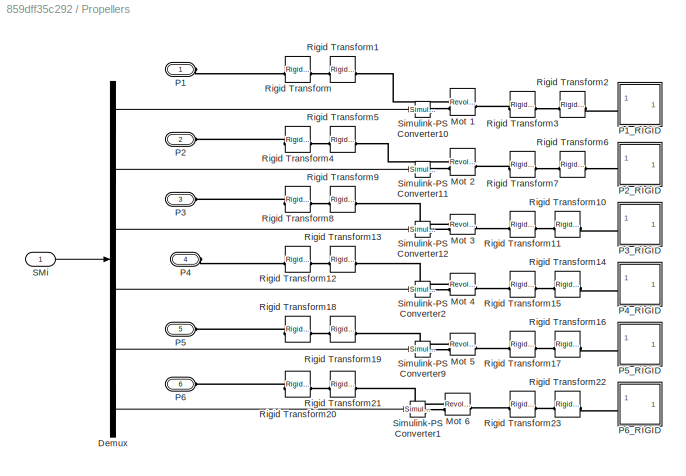
BLOCK [SubSystem] Propellers
  PortSchema = {"entries":[{"content":{"sides":[{"content":{"connectorIds":["LConn1","LConn2","LConn3","LConn4","LConn5","LConn6","In1"]},"type":"ConnectorPlacement.EquallySpacedRectSide","uuid":"9c5d05a2-4035-40ad-8d4a-e62a9e545ecc"},{"content":{"side":"RIGHT"},"type":"ConnectorPlacement.EquallySpacedRectSide","uuid":"3e5c26fb-2eb0-49c3-aa19-950d78a874de"},{"content":{"side":"TOP"},"type":"ConnectorPlacement.Eq...<+252ch>
BLOCK [Demux] Propellers/Demux
  Outputs = 6
BLOCK [Reference] Propellers/Mot 1  REF=sm_lib/Joints/Revolute Joint
  SourceBlock = sm_lib/Joints/Revolute Joint
  SourceType = Revolute Joint
BLOCK [Reference] Propellers/Mot 2  REF=sm_lib/Joints/Revolute Joint
  SourceBlock = sm_lib/Joints/Revolute Joint
  SourceType = Revolute Joint
BLOCK [Reference] Propellers/Mot 3  REF=sm_lib/Joints/Revolute Joint
  SourceBlock = sm_lib/Joints/Revolute Joint
  SourceType = Revolute Joint
BLOCK [Reference] Propellers/Mot 4  REF=sm_lib/Joints/Revolute Joint
  SourceBlock = sm_lib/Joints/Revolute Joint
  SourceType = Revolute Joint
BLOCK [Reference] Propellers/Mot 5  REF=sm_lib/Joints/Revolute Joint
  SourceBlock = sm_lib/Joints/Revolute Joint
  SourceType = Revolute Joint
BLOCK [Reference] Propellers/Mot 6  REF=sm_lib/Joints/Revolute Joint
  SourceBlock = sm_lib/Joints/Revolute Joint
  SourceType = Revolute Joint
BLOCK [PMIOPort] Propellers/P1
  Side = Left
BLOCK [SubSystem] Propellers/P1_RIGID
BLOCK [PMIOPort] Propellers/P1_RIGID/F
  Side = Left
BLOCK [Reference] Propellers/P1_RIGID/ReferenceFrame  REF=sm_lib/Frames and
Transforms/Reference
Frame
  SourceBlock = sm_lib/Frames and\nTransforms/Reference\nFrame
  SourceType = Reference\nFrame
BLOCK [Reference] Propellers/P1_RIGID/Solid  REF=sm_lib/Body Elements/File Solid
  SourceBlock = sm_lib/Body Elements/File Solid
  SourceType = File Solid
BLOCK [PMIOPort] Propellers/P2
  Port = 2
  Side = Left
BLOCK [SubSystem] Propellers/P2_RIGID
BLOCK [PMIOPort] Propellers/P2_RIGID/F
  Side = Left
BLOCK [Reference] Propellers/P2_RIGID/ReferenceFrame  REF=sm_lib/Frames and
Transforms/Reference
Frame
  SourceBlock = sm_lib/Frames and\nTransforms/Reference\nFrame
  SourceType = Reference\nFrame
BLOCK [Reference] Propellers/P2_RIGID/Solid  REF=sm_lib/Body Elements/File Solid
  SourceBlock = sm_lib/Body Elements/File Solid
  SourceType = File Solid
BLOCK [PMIOPort] Propellers/P3
  Port = 3
  Side = Left
BLOCK [SubSystem] Propellers/P3_RIGID
BLOCK [PMIOPort] Propellers/P3_RIGID/F
  Side = Left
BLOCK [Reference] Propellers/P3_RIGID/ReferenceFrame  REF=sm_lib/Frames and
Transforms/Reference
Frame
  SourceBlock = sm_lib/Frames and\nTransforms/Reference\nFrame
  SourceType = Reference\nFrame
BLOCK [Reference] Propellers/P3_RIGID/Solid  REF=sm_lib/Body Elements/File Solid
  SourceBlock = sm_lib/Body Elements/File Solid
  SourceType = File Solid
BLOCK [PMIOPort] Propellers/P4
  Port = 4
  Side = Left
BLOCK [SubSystem] Propellers/P4_RIGID
BLOCK [PMIOPort] Propellers/P4_RIGID/F
  Side = Left
BLOCK [Reference] Propellers/P4_RIGID/ReferenceFrame  REF=sm_lib/Frames and
Transforms/Reference
Frame
  SourceBlock = sm_lib/Frames and\nTransforms/Reference\nFrame
  SourceType = Reference\nFrame
BLOCK [Reference] Propellers/P4_RIGID/Solid  REF=sm_lib/Body Elements/File Solid
  SourceBlock = sm_lib/Body Elements/File Solid
  SourceType = File Solid
BLOCK [PMIOPort] Propellers/P5
  Port = 5
  Side = Left
BLOCK [SubSystem] Propellers/P5_RIGID
BLOCK [PMIOPort] Propellers/P5_RIGID/F
  Side = Left
BLOCK [Reference] Propellers/P5_RIGID/ReferenceFrame  REF=sm_lib/Frames and
Transforms/Reference
Frame
  SourceBlock = sm_lib/Frames and\nTransforms/Reference\nFrame
  SourceType = Reference\nFrame
BLOCK [Reference] Propellers/P5_RIGID/Solid  REF=sm_lib/Body Elements/File Solid
  SourceBlock = sm_lib/Body Elements/File Solid
  SourceType = File Solid
BLOCK [PMIOPort] Propellers/P6
  Port = 6
  Side = Left
BLOCK [SubSystem] Propellers/P6_RIGID
BLOCK [PMIOPort] Propellers/P6_RIGID/F
  Side = Left
BLOCK [Reference] Propellers/P6_RIGID/ReferenceFrame  REF=sm_lib/Frames and
Transforms/Reference
Frame
  SourceBlock = sm_lib/Frames and\nTransforms/Reference\nFrame
  SourceType = Reference\nFrame
BLOCK [Reference] Propellers/P6_RIGID/Solid  REF=sm_lib/Body Elements/File Solid
  SourceBlock = sm_lib/Body Elements/File Solid
  SourceType = File Solid
BLOCK [Reference] Propellers/Rigid Transform  REF=sm_lib/Frames and
Transforms/Rigid
Transform
  SourceBlock = sm_lib/Frames and\nTransforms/Rigid\nTransform
  SourceType = Rigid\nTransform
BLOCK [Reference] Propellers/Rigid Transform1  REF=sm_lib/Frames and
Transforms/Rigid
Transform
  SourceBlock = sm_lib/Frames and\nTransforms/Rigid\nTransform
  SourceType = Rigid\nTransform
BLOCK [Reference] Propellers/Rigid Transform10  REF=sm_lib/Frames and
Transforms/Rigid
Transform
  NameLocation = top
  SourceBlock = sm_lib/Frames and\nTransforms/Rigid\nTransform
  SourceType = Rigid\nTransform
BLOCK [Reference] Propellers/Rigid Transform11  REF=sm_lib/Frames and
Transforms/Rigid
Transform
  NameLocation = top
  SourceBlock = sm_lib/Frames and\nTransforms/Rigid\nTransform
  SourceType = Rigid\nTransform
BLOCK [Reference] Propellers/Rigid Transform12  REF=sm_lib/Frames and
Transforms/Rigid
Transform
  SourceBlock = sm_lib/Frames and\nTransforms/Rigid\nTransform
  SourceType = Rigid\nTransform
BLOCK [Reference] Propellers/Rigid Transform13  REF=sm_lib/Frames and
Transforms/Rigid
Transform
  SourceBlock = sm_lib/Frames and\nTransforms/Rigid\nTransform
  SourceType = Rigid\nTransform
BLOCK [Reference] Propellers/Rigid Transform14  REF=sm_lib/Frames and
Transforms/Rigid
Transform
  NameLocation = top
  SourceBlock = sm_lib/Frames and\nTransforms/Rigid\nTransform
  SourceType = Rigid\nTransform
BLOCK [Reference] Propellers/Rigid Transform15  REF=sm_lib/Frames and
Transforms/Rigid
Transform
  NameLocation = top
  SourceBlock = sm_lib/Frames and\nTransforms/Rigid\nTransform
  SourceType = Rigid\nTransform
BLOCK [Reference] Propellers/Rigid Transform16  REF=sm_lib/Frames and
Transforms/Rigid
Transform
  NameLocation = top
  SourceBlock = sm_lib/Frames and\nTransforms/Rigid\nTransform
  SourceType = Rigid\nTransform
BLOCK [Reference] Propellers/Rigid Transform17  REF=sm_lib/Frames and
Transforms/Rigid
Transform
  NameLocation = top
  SourceBlock = sm_lib/Frames and\nTransforms/Rigid\nTransform
  SourceType = Rigid\nTransform
BLOCK [Reference] Propellers/Rigid Transform18  REF=sm_lib/Frames and
Transforms/Rigid
Transform
  SourceBlock = sm_lib/Frames and\nTransforms/Rigid\nTransform
  SourceType = Rigid\nTransform
BLOCK [Reference] Propellers/Rigid Transform19  REF=sm_lib/Frames and
Transforms/Rigid
Transform
  SourceBlock = sm_lib/Frames and\nTransforms/Rigid\nTransform
  SourceType = Rigid\nTransform
BLOCK [Reference] Propellers/Rigid Transform2  REF=sm_lib/Frames and
Transforms/Rigid
Transform
  NameLocation = top
  SourceBlock = sm_lib/Frames and\nTransforms/Rigid\nTransform
  SourceType = Rigid\nTransform
BLOCK [Reference] Propellers/Rigid Transform20  REF=sm_lib/Frames and
Transforms/Rigid
Transform
  SourceBlock = sm_lib/Frames and\nTransforms/Rigid\nTransform
  SourceType = Rigid\nTransform
BLOCK [Reference] Propellers/Rigid Transform21  REF=sm_lib/Frames and
Transforms/Rigid
Transform
  SourceBlock = sm_lib/Frames and\nTransforms/Rigid\nTransform
  SourceType = Rigid\nTransform
BLOCK [Reference] Propellers/Rigid Transform22  REF=sm_lib/Frames and
Transforms/Rigid
Transform
  NameLocation = top
  SourceBlock = sm_lib/Frames and\nTransforms/Rigid\nTransform
  SourceType = Rigid\nTransform
BLOCK [Reference] Propellers/Rigid Transform23  REF=sm_lib/Frames and
Transforms/Rigid
Transform
  NameLocation = top
  SourceBlock = sm_lib/Frames and\nTransforms/Rigid\nTransform
  SourceType = Rigid\nTransform
BLOCK [Reference] Propellers/Rigid Transform3  REF=sm_lib/Frames and
Transforms/Rigid
Transform
  NameLocation = top
  SourceBlock = sm_lib/Frames and\nTransforms/Rigid\nTransform
  SourceType = Rigid\nTransform
BLOCK [Reference] Propellers/Rigid Transform4  REF=sm_lib/Frames and
Transforms/Rigid
Transform
  SourceBlock = sm_lib/Frames and\nTransforms/Rigid\nTransform
  SourceType = Rigid\nTransform
BLOCK [Reference] Propellers/Rigid Transform5  REF=sm_lib/Frames and
Transforms/Rigid
Transform
  SourceBlock = sm_lib/Frames and\nTransforms/Rigid\nTransform
  SourceType = Rigid\nTransform
BLOCK [Reference] Propellers/Rigid Transform6  REF=sm_lib/Frames and
Transforms/Rigid
Transform
  NameLocation = top
  SourceBlock = sm_lib/Frames and\nTransforms/Rigid\nTransform
  SourceType = Rigid\nTransform
BLOCK [Reference] Propellers/Rigid Transform7  REF=sm_lib/Frames and
Transforms/Rigid
Transform
  NameLocation = top
  SourceBlock = sm_lib/Frames and\nTransforms/Rigid\nTransform
  SourceType = Rigid\nTransform
BLOCK [Reference] Propellers/Rigid Transform8  REF=sm_lib/Frames and
Transforms/Rigid
Transform
  SourceBlock = sm_lib/Frames and\nTransforms/Rigid\nTransform
  SourceType = Rigid\nTransform
BLOCK [Reference] Propellers/Rigid Transform9  REF=sm_lib/Frames and
Transforms/Rigid
Transform
  SourceBlock = sm_lib/Frames and\nTransforms/Rigid\nTransform
  SourceType = Rigid\nTransform
BLOCK [Inport] Propellers/SMi
BLOCK [Reference] Propellers/Simulink-PS Converter1  REF=nesl_utility/Simulink-PS
Converter
  SourceBlock = nesl_utility/Simulink-PS\nConverter
  SourceType = Simulink-PS\nConverter
BLOCK [Reference] Propellers/Simulink-PS Converter10  REF=nesl_utility/Simulink-PS
Converter
  SourceBlock = nesl_utility/Simulink-PS\nConverter
  SourceType = Simulink-PS\nConverter
BLOCK [Reference] Propellers/Simulink-PS Converter11  REF=nesl_utility/Simulink-PS
Converter
  SourceBlock = nesl_utility/Simulink-PS\nConverter
  SourceType = Simulink-PS\nConverter
BLOCK [Reference] Propellers/Simulink-PS Converter12  REF=nesl_utility/Simulink-PS
Converter
  SourceBlock = nesl_utility/Simulink-PS\nConverter
  SourceType = Simulink-PS\nConverter
BLOCK [Reference] Propellers/Simulink-PS Converter2  REF=nesl_utility/Simulink-PS
Converter
  SourceBlock = nesl_utility/Simulink-PS\nConverter
  SourceType = Simulink-PS\nConverter
BLOCK [Reference] Propellers/Simulink-PS Converter9  REF=nesl_utility/Simulink-PS
Converter
  SourceBlock = nesl_utility/Simulink-PS\nConverter
  SourceType = Simulink-PS\nConverter
BLOCK [SubSystem] Return Rev1
BLOCK [PMIOPort] Return Rev1/Conn1
  Side = Left
BLOCK [PMIOPort] Return Rev1/Conn2
  Port = 2
  Side = Right
BLOCK [Reference] Return Rev1/Rigid Transform  REF=sm_lib/Frames and
Transforms/Rigid
Transform
  SourceBlock = sm_lib/Frames and\nTransforms/Rigid\nTransform
  SourceType = Rigid\nTransform
BLOCK [Reference] Return Rev1/Rigid Transform2  REF=sm_lib/Frames and
Transforms/Rigid
Transform
  NameLocation = top
  SourceBlock = sm_lib/Frames and\nTransforms/Rigid\nTransform
  SourceType = Rigid\nTransform
BLOCK [Reference] Return Rev1/Rigid Transform3  REF=sm_lib/Frames and
Transforms/Rigid
Transform
  NameLocation = top
  SourceBlock = sm_lib/Frames and\nTransforms/Rigid\nTransform
  SourceType = Rigid\nTransform
BLOCK [SubSystem] Return Rev2
BLOCK [PMIOPort] Return Rev2/Conn1
  Side = Left
BLOCK [PMIOPort] Return Rev2/Conn2
  Port = 2
  Side = Right
BLOCK [Reference] Return Rev2/Rigid Transform  REF=sm_lib/Frames and
Transforms/Rigid
Transform
  NameLocation = top
  SourceBlock = sm_lib/Frames and\nTransforms/Rigid\nTransform
  SourceType = Rigid\nTransform
BLOCK [Reference] Return Rev2/Rigid Transform1  REF=sm_lib/Frames and
Transforms/Rigid
Transform
  NameLocation = top
  SourceBlock = sm_lib/Frames and\nTransforms/Rigid\nTransform
  SourceType = Rigid\nTransform
BLOCK [Reference] Revolute1  REF=sm_lib/Joints/Revolute Joint
  SourceBlock = sm_lib/Joints/Revolute Joint
  SourceType = Revolute Joint
BLOCK [Reference] Revolute2  REF=sm_lib/Joints/Revolute Joint
  SourceBlock = sm_lib/Joints/Revolute Joint
  SourceType = Revolute Joint
BLOCK [SubSystem] Servo1_RIGID
  NameLocation = top
BLOCK [SubSystem] Servo1_RIGID/Base_Plate_1_RIGID
BLOCK [PMIOPort] Servo1_RIGID/Base_Plate_1_RIGID/F
  Side = Left
BLOCK [Reference] Servo1_RIGID/Base_Plate_1_RIGID/ReferenceFrame  REF=sm_lib/Frames and
Transforms/Reference
Frame
  SourceBlock = sm_lib/Frames and\nTransforms/Reference\nFrame
  SourceType = Reference\nFrame
BLOCK [Reference] Servo1_RIGID/Base_Plate_1_RIGID/Solid  REF=sm_lib/Body Elements/File Solid
  SourceBlock = sm_lib/Body Elements/File Solid
  SourceType = File Solid
BLOCK [PMIOPort] Servo1_RIGID/F
  Side = Right
BLOCK [Reference] Servo1_RIGID/ReferenceFrame  REF=sm_lib/Frames and
Transforms/Reference
Frame
  SourceBlock = sm_lib/Frames and\nTransforms/Reference\nFrame
  SourceType = Reference\nFrame
BLOCK [SubSystem] Servo1_RIGID/Servo_RDS3225_1_RIGID
BLOCK [PMIOPort] Servo1_RIGID/Servo_RDS3225_1_RIGID/F
  Side = Left
BLOCK [Reference] Servo1_RIGID/Servo_RDS3225_1_RIGID/ReferenceFrame  REF=sm_lib/Frames and
Transforms/Reference
Frame
  SourceBlock = sm_lib/Frames and\nTransforms/Reference\nFrame
  SourceType = Reference\nFrame
BLOCK [Reference] Servo1_RIGID/Servo_RDS3225_1_RIGID/Solid  REF=sm_lib/Body Elements/File Solid
  SourceBlock = sm_lib/Body Elements/File Solid
  SourceType = File Solid
BLOCK [SubSystem] Servo1_RIGID/Soporte_U_corto_1_RIGID
BLOCK [PMIOPort] Servo1_RIGID/Soporte_U_corto_1_RIGID/F
  Side = Left
BLOCK [Reference] Servo1_RIGID/Soporte_U_corto_1_RIGID/ReferenceFrame  REF=sm_lib/Frames and
Transforms/Reference
Frame
  SourceBlock = sm_lib/Frames and\nTransforms/Reference\nFrame
  SourceType = Reference\nFrame
BLOCK [Reference] Servo1_RIGID/Soporte_U_corto_1_RIGID/Solid  REF=sm_lib/Body Elements/File Solid
  SourceBlock = sm_lib/Body Elements/File Solid
  SourceType = File Solid
BLOCK [Reference] Servo1_RIGID/Transform  REF=sm_lib/Frames and
Transforms/Rigid
Transform
  SourceBlock = sm_lib/Frames and\nTransforms/Rigid\nTransform
  SourceType = Rigid\nTransform
BLOCK [Reference] Servo1_RIGID/Transform1  REF=sm_lib/Frames and
Transforms/Rigid
Transform
  SourceBlock = sm_lib/Frames and\nTransforms/Rigid\nTransform
  SourceType = Rigid\nTransform
BLOCK [Reference] Servo1_RIGID/Transform2  REF=sm_lib/Frames and
Transforms/Rigid
Transform
  SourceBlock = sm_lib/Frames and\nTransforms/Rigid\nTransform
  SourceType = Rigid\nTransform
BLOCK [Reference] Servo1_RIGID/Transform3  REF=sm_lib/Frames and
Transforms/Rigid
Transform
  SourceBlock = sm_lib/Frames and\nTransforms/Rigid\nTransform
  SourceType = Rigid\nTransform
BLOCK [Reference] Solver Configuration  REF=nesl_utility/Solver
Configuration
  SourceBlock = nesl_utility/Solver\nConfiguration
  SourceType = Solver\nConfiguration
BLOCK [Reference] Spherical Solid  REF=sm_lib/Body Elements/Spherical Solid
  NameLocation = top
  SourceBlock = sm_lib/Body Elements/Spherical Solid
  SourceType = Spherical Solid
BLOCK [Reference] TopPlateToJoint  REF=sm_lib/Frames and
Transforms/Rigid
Transform
  SourceBlock = sm_lib/Frames and\nTransforms/Rigid\nTransform
  SourceType = Rigid\nTransform
BLOCK [Reference] World  REF=sm_lib/Frames and
Transforms/World Frame
  SourceBlock = sm_lib/Frames and\nTransforms/World Frame
  SourceType = World Frame
LINE Hexa6DOFJoint/Mux33:1 -> Hexa6DOFJoint/Selector2:1
LINE Hexa6DOFJoint/Mux35:1 -> Hexa6DOFJoint/pos:1
LINE Hexa6DOFJoint/Mux37:1 -> Hexa6DOFJoint/vel:1
LINE Hexa6DOFJoint/PS-Simulink Converter3:1 -> Hexa6DOFJoint/Zero-Order Hold4:1
LINE Hexa6DOFJoint/PS-Simulink Converter4:1 -> Hexa6DOFJoint/Zero-Order Hold3:1
LINE Hexa6DOFJoint/PS-Simulink Converter5:1 -> Hexa6DOFJoint/Zero-Order Hold2:1
LINE Hexa6DOFJoint/Quaternions to Rotation Angles1:1 -> Hexa6DOFJoint/Selector1:1
LINE Hexa6DOFJoint/Selector1:1 -> Hexa6DOFJoint/BF_att:1
LINE Hexa6DOFJoint/Selector2:1 -> Hexa6DOFJoint/BF_dAtt:1
LINE Hexa6DOFJoint/Sx4:1 -> Hexa6DOFJoint/Quaternions to Rotation Angles1:1
LINE Hexa6DOFJoint/Zero-Order Hold2:1 -> Hexa6DOFJoint/Mux33:3
LINE Hexa6DOFJoint/Zero-Order Hold3:1 -> Hexa6DOFJoint/Mux33:2
LINE Hexa6DOFJoint/Zero-Order Hold4:1 -> Hexa6DOFJoint/Mux33:1
LINE Hexa6DOFJoint/x:1 -> Hexa6DOFJoint/Mux35:1
LINE Hexa6DOFJoint/xp:1 -> Hexa6DOFJoint/Mux37:1
LINE Hexa6DOFJoint/y:1 -> Hexa6DOFJoint/Mux35:2
LINE Hexa6DOFJoint/yp:1 -> Hexa6DOFJoint/Mux37:2
LINE Hexa6DOFJoint/z:1 -> Hexa6DOFJoint/Mux35:3
LINE Hexa6DOFJoint/zp:1 -> Hexa6DOFJoint/Mux37:3
LINE Motors/Demux:1 -> Motors/Simulink-PS Converter6:1
LINE Motors/Demux:2 -> Motors/Simulink-PS Converter1:1
LINE Motors/Demux:3 -> Motors/Simulink-PS Converter2:1
LINE Motors/Demux:4 -> Motors/Simulink-PS Converter3:1
LINE Motors/Demux:5 -> Motors/Simulink-PS Converter4:1
LINE Motors/Demux:6 -> Motors/Simulink-PS Converter5:1
LINE Motors/FMi:1 -> Motors/Demux:1
LINE Propellers/Demux:1 -> Propellers/Simulink-PS Converter10:1
LINE Propellers/Demux:2 -> Propellers/Simulink-PS Converter11:1
LINE Propellers/Demux:3 -> Propellers/Simulink-PS Converter12:1
LINE Propellers/Demux:4 -> Propellers/Simulink-PS Converter2:1
LINE Propellers/Demux:5 -> Propellers/Simulink-PS Converter9:1
LINE Propellers/Demux:6 -> Propellers/Simulink-PS Converter1:1
LINE Propellers/SMi:1 -> Propellers/Demux:1
PLINE Adjust Rev1/Conn1:RConn1 -- Adjust Rev1/Rigid Transform:LConn1
PLINE Adjust Rev1/Conn2:RConn1 -- Adjust Rev1/Rigid Transform1:RConn1
PLINE Adjust Rev1/Rigid Transform1:LConn1 -- Adjust Rev1/Rigid Transform:RConn1
PLINE Adjust Rev1:LConn1 -- TopPlateToJoint:RConn1
PLINE Adjust Rev1:RConn1 -- Revolute1:LConn1
PLINE Adjust Rev2/Conn1:RConn1 -- Adjust Rev2/Rigid Transform:LConn1
PLINE Adjust Rev2/Conn2:RConn1 -- Adjust Rev2/Rigid Transform1:RConn1
PLINE Adjust Rev2/Rigid Transform1:LConn1 -- Adjust Rev2/Rigid Transform:RConn1
PLINE Adjust Rev2:LConn1 -- Link_1_RIGID:RConn1
PLINE Adjust Rev2:RConn1 -- Revolute2:LConn1
PLINE CMToTopPlate/CM:RConn1 -- CMToTopPlate/CMToWorld:RConn1
PLINE CMToTopPlate/CMToWorld:LConn1 -- CMToTopPlate/WorldToTopPlate:LConn1
PLINE CMToTopPlate/TopPlate:RConn1 -- CMToTopPlate/WorldToTopPlate:RConn1
PLINE CMToTopPlate:LConn1 -- Hexa6DOFJoint:RConn1
PNET net1: CMToTopPlate:RConn1 -- Hexa_RIGID:LConn1 -- Servo1_RIGID:RConn1 -- TopPlateToJoint:LConn1
PLINE Hexa6DOFJoint/6-DOF Joint:LConn1 -- Hexa6DOFJoint/WorldToCM:RConn1
PNET net2: Hexa6DOFJoint/6-DOF Joint:RConn1 -- Hexa6DOFJoint/CM:RConn1 -- Hexa6DOFJoint/Sensor de Posicion:RConn1 -- Hexa6DOFJoint/Sensor de Rotacion:RConn1
PLINE Hexa6DOFJoint/PS-Simulink Converter3:LConn1 -- Hexa6DOFJoint/Sensor de Rotacion:RConn5
PLINE Hexa6DOFJoint/PS-Simulink Converter4:LConn1 -- Hexa6DOFJoint/Sensor de Rotacion:RConn4
PLINE Hexa6DOFJoint/PS-Simulink Converter5:LConn1 -- Hexa6DOFJoint/Sensor de Rotacion:RConn3
PNET net3: Hexa6DOFJoint/Sensor de Posicion:LConn1 -- Hexa6DOFJoint/Sensor de Rotacion:LConn1 -- Hexa6DOFJoint/World:RConn1 -- Hexa6DOFJoint/WorldToCM:LConn1
PLINE Hexa6DOFJoint/Sensor de Posicion:RConn2 -- Hexa6DOFJoint/x:LConn1
PLINE Hexa6DOFJoint/Sensor de Posicion:RConn3 -- Hexa6DOFJoint/y:LConn1
PLINE Hexa6DOFJoint/Sensor de Posicion:RConn4 -- Hexa6DOFJoint/z:LConn1
PLINE Hexa6DOFJoint/Sensor de Posicion:RConn5 -- Hexa6DOFJoint/xp:LConn1
PLINE Hexa6DOFJoint/Sensor de Posicion:RConn6 -- Hexa6DOFJoint/yp:LConn1
PLINE Hexa6DOFJoint/Sensor de Posicion:RConn7 -- Hexa6DOFJoint/zp:LConn1
PLINE Hexa6DOFJoint/Sensor de Rotacion:RConn2 -- Hexa6DOFJoint/Sx4:LConn1
PNET net4: Hexa6DOFJoint:LConn1 -- Infinite Plane1:LConn1 -- Infinite Plane2:LConn1 -- Infinite Plane:LConn1 -- MechanismConfiguration:RConn1 -- Solver Configuration:RConn1 -- World:RConn1
PNET net5: Hexa_RIGID/Arm_1_RIGID/F:RConn1 -- Hexa_RIGID/Arm_1_RIGID/ReferenceFrame:RConn1 -- Hexa_RIGID/Arm_1_RIGID/Solid:RConn1
PLINE Hexa_RIGID/Arm_1_RIGID:LConn1 -- Hexa_RIGID/Transform5:RConn1
PNET net6: Hexa_RIGID/Arm_2_RIGID/F:RConn1 -- Hexa_RIGID/Arm_2_RIGID/ReferenceFrame:RConn1 -- Hexa_RIGID/Arm_2_RIGID/Solid:RConn1
PLINE Hexa_RIGID/Arm_2_RIGID:LConn1 -- Hexa_RIGID/Transform14:RConn1
PNET net7: Hexa_RIGID/Arm_3_RIGID/F:RConn1 -- Hexa_RIGID/Arm_3_RIGID/ReferenceFrame:RConn1 -- Hexa_RIGID/Arm_3_RIGID/Solid:RConn1
PLINE Hexa_RIGID/Arm_3_RIGID:LConn1 -- Hexa_RIGID/Transform9:RConn1
PNET net8: Hexa_RIGID/Arm_4_RIGID/F:RConn1 -- Hexa_RIGID/Arm_4_RIGID/ReferenceFrame:RConn1 -- Hexa_RIGID/Arm_4_RIGID/Solid:RConn1
PLINE Hexa_RIGID/Arm_4_RIGID:LConn1 -- Hexa_RIGID/Transform10:RConn1
PNET net9: Hexa_RIGID/Arm_5_RIGID/F:RConn1 -- Hexa_RIGID/Arm_5_RIGID/ReferenceFrame:RConn1 -- Hexa_RIGID/Arm_5_RIGID/Solid:RConn1
PLINE Hexa_RIGID/Arm_5_RIGID:LConn1 -- Hexa_RIGID/Transform11:RConn1
PNET net10: Hexa_RIGID/Arm_6_RIGID/F:RConn1 -- Hexa_RIGID/Arm_6_RIGID/ReferenceFrame:RConn1 -- Hexa_RIGID/Arm_6_RIGID/Solid:RConn1
PLINE Hexa_RIGID/Arm_6_RIGID:LConn1 -- Hexa_RIGID/Transform13:RConn1
PNET net11: Hexa_RIGID/Base1_1_RIGID/F:RConn1 -- Hexa_RIGID/Base1_1_RIGID/ReferenceFrame:RConn1 -- Hexa_RIGID/Base1_1_RIGID/Solid:RConn1
PLINE Hexa_RIGID/Base1_1_RIGID:LConn1 -- Hexa_RIGID/Transform17:RConn1
PNET net12: Hexa_RIGID/Base2_1_RIGID/F:RConn1 -- Hexa_RIGID/Base2_1_RIGID/ReferenceFrame:RConn1 -- Hexa_RIGID/Base2_1_RIGID/Solid:RConn1
PLINE Hexa_RIGID/Base2_1_RIGID:LConn1 -- Hexa_RIGID/Transform18:RConn1
PNET net13: Hexa_RIGID/Base_20deg_6Compensation_Motor1_3_5_V2_1_RIGID/F:RConn1 -- Hexa_RIGID/Base_20deg_6Compensation_Motor1_3_5_V2_1_RIGID/ReferenceFrame:RConn1 -- Hexa_RIGID/Base_20deg_6Compensation_Motor1_3_5_V2_1_RIGID/Solid:RConn1
PLINE Hexa_RIGID/Base_20deg_6Compensation_Motor1_3_5_V2_1_RIGID:LConn1 -- Hexa_RIGID/Transform15:RConn1
PNET net14: Hexa_RIGID/Base_20deg_6Compensation_Motor1_3_5_V2_2_RIGID/F:RConn1 -- Hexa_RIGID/Base_20deg_6Compensation_Motor1_3_5_V2_2_RIGID/ReferenceFrame:RConn1 -- Hexa_RIGID/Base_20deg_6Compensation_Motor1_3_5_V2_2_RIGID/Solid:RConn1
PLINE Hexa_RIGID/Base_20deg_6Compensation_Motor1_3_5_V2_2_RIGID:LConn1 -- Hexa_RIGID/Transform2:RConn1
PNET net15: Hexa_RIGID/Base_20deg_6Compensation_Motor1_3_5_V2_3_RIGID/F:RConn1 -- Hexa_RIGID/Base_20deg_6Compensation_Motor1_3_5_V2_3_RIGID/ReferenceFrame:RConn1 -- Hexa_RIGID/Base_20deg_6Compensation_Motor1_3_5_V2_3_RIGID/Solid:RConn1
PLINE Hexa_RIGID/Base_20deg_6Compensation_Motor1_3_5_V2_3_RIGID:LConn1 -- Hexa_RIGID/Transform16:RConn1
PNET net16: Hexa_RIGID/Base_20deg_6Compensation_Motor2_4_6_V2_1_RIGID/F:RConn1 -- Hexa_RIGID/Base_20deg_6Compensation_Motor2_4_6_V2_1_RIGID/ReferenceFrame:RConn1 -- Hexa_RIGID/Base_20deg_6Compensation_Motor2_4_6_V2_1_RIGID/Solid:RConn1
PLINE Hexa_RIGID/Base_20deg_6Compensation_Motor2_4_6_V2_1_RIGID:LConn1 -- Hexa_RIGID/Transform12:RConn1
PNET net17: Hexa_RIGID/Base_20deg_6Compensation_Motor2_4_6_V2_2_RIGID/F:RConn1 -- Hexa_RIGID/Base_20deg_6Compensation_Motor2_4_6_V2_2_RIGID/ReferenceFrame:RConn1 -- Hexa_RIGID/Base_20deg_6Compensation_Motor2_4_6_V2_2_RIGID/Solid:RConn1
PLINE Hexa_RIGID/Base_20deg_6Compensation_Motor2_4_6_V2_2_RIGID:LConn1 -- Hexa_RIGID/Transform21:RConn1
PNET net18: Hexa_RIGID/Base_20deg_6Compensation_Motor2_4_6_V2_3_RIGID/F:RConn1 -- Hexa_RIGID/Base_20deg_6Compensation_Motor2_4_6_V2_3_RIGID/ReferenceFrame:RConn1 -- Hexa_RIGID/Base_20deg_6Compensation_Motor2_4_6_V2_3_RIGID/Solid:RConn1
PLINE Hexa_RIGID/Base_20deg_6Compensation_Motor2_4_6_V2_3_RIGID:LConn1 -- Hexa_RIGID/Transform1:RConn1
PNET net19: Hexa_RIGID/Bottom_Plate_S550_1_RIGID/F:RConn1 -- Hexa_RIGID/Bottom_Plate_S550_1_RIGID/ReferenceFrame:RConn1 -- Hexa_RIGID/Bottom_Plate_S550_1_RIGID/Solid:RConn1
PLINE Hexa_RIGID/Bottom_Plate_S550_1_RIGID:LConn1 -- Hexa_RIGID/Transform8:RConn1
PNET net20: Hexa_RIGID/CaseB_1_RIGID/F:RConn1 -- Hexa_RIGID/CaseB_1_RIGID/ReferenceFrame:RConn1 -- Hexa_RIGID/CaseB_1_RIGID/Solid:RConn1
PLINE Hexa_RIGID/CaseB_1_RIGID:LConn1 -- Hexa_RIGID/Transform19:RConn1
PNET net21: Hexa_RIGID/CaseT_1_RIGID/F:RConn1 -- Hexa_RIGID/CaseT_1_RIGID/ReferenceFrame:RConn1 -- Hexa_RIGID/CaseT_1_RIGID/Solid:RConn1
PLINE Hexa_RIGID/CaseT_1_RIGID:LConn1 -- Hexa_RIGID/Transform4:RConn1
PNET net22: Hexa_RIGID/F1:RConn1 -- Hexa_RIGID/ReferenceFrame:RConn1 -- Hexa_RIGID/Transform10:LConn1 -- Hexa_RIGID/Transform11:LConn1 -- Hexa_RIGID/Transform12:LConn1 -- Hexa_RIGID/Transform13:LConn1 -- Hexa_RIGID/Transform14:LConn1 -- Hexa_RIGID/Transform15:LConn1 -- Hexa_RIGID/Transform16:LConn1 -- Hexa_RIGID/Transform17:LConn1 -- Hexa_RIGID/Transform18:LConn1 -- Hexa_RIGID/Transform19:LConn1 -- Hexa_RIGID/Transform1:LConn1 -- Hexa_RIGID/Transform20:LConn1 -- Hexa_RIGID/Transform21:LConn1 -- Hexa_RIGID/Transform22:LConn1 -- Hexa_RIGID/Transform23:LConn1 -- Hexa_RIGID/Transform24:LConn1 -- Hexa_RIGID/Transform25:LConn1 -- Hexa_RIGID/Transform26:LConn1 -- Hexa_RIGID/Transform27:LConn1 -- Hexa_RIGID/Transform28:LConn1 -- Hexa_RIGID/Transform29:LConn1 -- Hexa_RIGID/Transform2:LConn1 -- Hexa_RIGID/Transform30:LConn1 -- Hexa_RIGID/Transform31:LConn1 -- Hexa_RIGID/Transform32:LConn1 -- Hexa_RIGID/Transform33:LConn1 -- Hexa_RIGID/Transform34:LConn1 -- Hexa_RIGID/Transform35:LConn1 -- Hexa_RIGID/Transform36:LConn1 -- Hexa_RIGID/Transform37:LConn1 -- Hexa_RIGID/Transform38:LConn1 -- Hexa_RIGID/Transform39:LConn1 -- Hexa_RIGID/Transform3:LConn1 -- Hexa_RIGID/Transform4:LConn1 -- Hexa_RIGID/Transform5:LConn1 -- Hexa_RIGID/Transform6:LConn1 -- Hexa_RIGID/Transform7:LConn1 -- Hexa_RIGID/Transform8:LConn1 -- Hexa_RIGID/Transform9:LConn1
PNET net23: Hexa_RIGID/Landing_support_1_RIGID/F:RConn1 -- Hexa_RIGID/Landing_support_1_RIGID/ReferenceFrame:RConn1 -- Hexa_RIGID/Landing_support_1_RIGID/Solid:RConn1
PLINE Hexa_RIGID/Landing_support_1_RIGID:LConn1 -- Hexa_RIGID/Transform35:RConn1
PNET net24: Hexa_RIGID/Landing_support_2_RIGID/F:RConn1 -- Hexa_RIGID/Landing_support_2_RIGID/ReferenceFrame:RConn1 -- Hexa_RIGID/Landing_support_2_RIGID/Solid:RConn1
PLINE Hexa_RIGID/Landing_support_2_RIGID:LConn1 -- Hexa_RIGID/Transform39:RConn1
PLINE Hexa_RIGID/M1:RConn1 -- Hexa_RIGID/Transform30:RConn1
PLINE Hexa_RIGID/M2:RConn1 -- Hexa_RIGID/Transform27:RConn1
PLINE Hexa_RIGID/M3:RConn1 -- Hexa_RIGID/Transform26:RConn1
PLINE Hexa_RIGID/M4:RConn1 -- Hexa_RIGID/Transform22:RConn1
PLINE Hexa_RIGID/M5:RConn1 -- Hexa_RIGID/Transform23:RConn1
PLINE Hexa_RIGID/M6:RConn1 -- Hexa_RIGID/Transform29:RConn1
PNET net25: Hexa_RIGID/NAVIO2_1_RIGID/F:RConn1 -- Hexa_RIGID/NAVIO2_1_RIGID/ReferenceFrame:RConn1 -- Hexa_RIGID/NAVIO2_1_RIGID/Solid:RConn1
PLINE Hexa_RIGID/NAVIO2_1_RIGID:LConn1 -- Hexa_RIGID/Transform3:RConn1
PLINE Hexa_RIGID/P1:RConn1 -- Hexa_RIGID/Transform38:RConn1
PLINE Hexa_RIGID/P2:RConn1 -- Hexa_RIGID/Transform37:RConn1
PLINE Hexa_RIGID/P3:RConn1 -- Hexa_RIGID/Transform33:RConn1
PLINE Hexa_RIGID/P4:RConn1 -- Hexa_RIGID/Transform36:RConn1
PLINE Hexa_RIGID/P5:RConn1 -- Hexa_RIGID/Transform24:RConn1
PLINE Hexa_RIGID/P6:RConn1 -- Hexa_RIGID/Transform31:RConn1
PNET net26: Hexa_RIGID/Raspberry_Pi_4_Model_B_1_RIGID/F:RConn1 -- Hexa_RIGID/Raspberry_Pi_4_Model_B_1_RIGID/ReferenceFrame:RConn1 -- Hexa_RIGID/Raspberry_Pi_4_Model_B_1_RIGID/Solid:RConn1
PLINE Hexa_RIGID/Raspberry_Pi_4_Model_B_1_RIGID:LConn1 -- Hexa_RIGID/Transform20:RConn1
PNET net27: Hexa_RIGID/Rubber_V2_1_RIGID/F:RConn1 -- Hexa_RIGID/Rubber_V2_1_RIGID/ReferenceFrame:RConn1 -- Hexa_RIGID/Rubber_V2_1_RIGID/Solid:RConn1
PLINE Hexa_RIGID/Rubber_V2_1_RIGID:LConn1 -- Hexa_RIGID/Transform6:RConn1
PNET net28: Hexa_RIGID/Rubber_V2_2_RIGID/F:RConn1 -- Hexa_RIGID/Rubber_V2_2_RIGID/ReferenceFrame:RConn1 -- Hexa_RIGID/Rubber_V2_2_RIGID/Solid:RConn1
PLINE Hexa_RIGID/Rubber_V2_2_RIGID:LConn1 -- Hexa_RIGID/Transform25:RConn1
PNET net29: Hexa_RIGID/Rubber_V2_3_RIGID/F:RConn1 -- Hexa_RIGID/Rubber_V2_3_RIGID/ReferenceFrame:RConn1 -- Hexa_RIGID/Rubber_V2_3_RIGID/Solid:RConn1
PLINE Hexa_RIGID/Rubber_V2_3_RIGID:LConn1 -- Hexa_RIGID/Transform32:RConn1
PNET net30: Hexa_RIGID/Rubber_V2_4_RIGID/F:RConn1 -- Hexa_RIGID/Rubber_V2_4_RIGID/ReferenceFrame:RConn1 -- Hexa_RIGID/Rubber_V2_4_RIGID/Solid:RConn1
PLINE Hexa_RIGID/Rubber_V2_4_RIGID:LConn1 -- Hexa_RIGID/Transform28:RConn1
PNET net31: Hexa_RIGID/Top_Plate_S550_1_RIGID/F:RConn1 -- Hexa_RIGID/Top_Plate_S550_1_RIGID/ReferenceFrame:RConn1 -- Hexa_RIGID/Top_Plate_S550_1_RIGID/Solid:RConn1
PLINE Hexa_RIGID/Top_Plate_S550_1_RIGID:LConn1 -- Hexa_RIGID/Transform7:RConn1
PLINE Hexa_RIGID/Transform34:RConn1 -- Hexa_RIGID/Turnigy_5000mAh_3S_2_RIGID:LConn1
PNET net32: Hexa_RIGID/Turnigy_5000mAh_3S_2_RIGID/F:RConn1 -- Hexa_RIGID/Turnigy_5000mAh_3S_2_RIGID/ReferenceFrame:RConn1 -- Hexa_RIGID/Turnigy_5000mAh_3S_2_RIGID/Solid:RConn1
PLINE Hexa_RIGID:RConn1 -- Motors:LConn1
PLINE Hexa_RIGID:RConn10 -- Propellers:LConn4
PLINE Hexa_RIGID:RConn11 -- Propellers:LConn5
PLINE Hexa_RIGID:RConn12 -- Propellers:LConn6
PLINE Hexa_RIGID:RConn2 -- Motors:LConn2
PLINE Hexa_RIGID:RConn3 -- Motors:LConn3
PLINE Hexa_RIGID:RConn4 -- Motors:LConn4
PLINE Hexa_RIGID:RConn5 -- Motors:LConn5
PLINE Hexa_RIGID:RConn6 -- Motors:LConn6
PLINE Hexa_RIGID:RConn7 -- Propellers:LConn1
PLINE Hexa_RIGID:RConn8 -- Propellers:LConn2
PLINE Hexa_RIGID:RConn9 -- Propellers:LConn3
PLINE Link_1_RIGID/F1:RConn1 -- Link_1_RIGID/Transform1:RConn1
PLINE Link_1_RIGID/F:RConn1 -- Link_1_RIGID/Transform:RConn1
PNET net33: Link_1_RIGID/ReferenceFrame:RConn1 -- Link_1_RIGID/Transform1:LConn1 -- Link_1_RIGID/Transform2:LConn1 -- Link_1_RIGID/Transform3:LConn1 -- Link_1_RIGID/Transform4:LConn1 -- Link_1_RIGID/Transform5:LConn1 -- Link_1_RIGID/Transform6:LConn1 -- Link_1_RIGID/Transform7:LConn1 -- Link_1_RIGID/Transform8:LConn1 -- Link_1_RIGID/Transform:LConn1
PNET net34: Link_1_RIGID/Rueda_abajo_1_RIGID/F:RConn1 -- Link_1_RIGID/Rueda_abajo_1_RIGID/ReferenceFrame:RConn1 -- Link_1_RIGID/Rueda_abajo_1_RIGID/Solid:RConn1
PLINE Link_1_RIGID/Rueda_abajo_1_RIGID:LConn1 -- Link_1_RIGID/Transform7:RConn1
PNET net35: Link_1_RIGID/Rueda_arriba_1_RIGID/F:RConn1 -- Link_1_RIGID/Rueda_arriba_1_RIGID/ReferenceFrame:RConn1 -- Link_1_RIGID/Rueda_arriba_1_RIGID/Solid:RConn1
PLINE Link_1_RIGID/Rueda_arriba_1_RIGID:LConn1 -- Link_1_RIGID/Transform2:RConn1
PNET net36: Link_1_RIGID/Servo_RDS3225_1_RIGID/F:RConn1 -- Link_1_RIGID/Servo_RDS3225_1_RIGID/ReferenceFrame:RConn1 -- Link_1_RIGID/Servo_RDS3225_1_RIGID/Solid:RConn1
PLINE Link_1_RIGID/Servo_RDS3225_1_RIGID:LConn1 -- Link_1_RIGID/Transform8:RConn1
PNET net37: Link_1_RIGID/Soporte_U_corto_1_RIGID/F:RConn1 -- Link_1_RIGID/Soporte_U_corto_1_RIGID/ReferenceFrame:RConn1 -- Link_1_RIGID/Soporte_U_corto_1_RIGID/Solid:RConn1
PLINE Link_1_RIGID/Soporte_U_corto_1_RIGID:LConn1 -- Link_1_RIGID/Transform4:RConn1
PNET net38: Link_1_RIGID/Soporte_U_largo_1_RIGID/F:RConn1 -- Link_1_RIGID/Soporte_U_largo_1_RIGID/ReferenceFrame:RConn1 -- Link_1_RIGID/Soporte_U_largo_1_RIGID/Solid:RConn1
PLINE Link_1_RIGID/Soporte_U_largo_1_RIGID:LConn1 -- Link_1_RIGID/Transform5:RConn1
PNET net39: Link_1_RIGID/Soporte_U_largo_2_RIGID/F:RConn1 -- Link_1_RIGID/Soporte_U_largo_2_RIGID/ReferenceFrame:RConn1 -- Link_1_RIGID/Soporte_U_largo_2_RIGID/Solid:RConn1
PLINE Link_1_RIGID/Soporte_U_largo_2_RIGID:LConn1 -- Link_1_RIGID/Transform6:RConn1
PNET net40: Link_1_RIGID/Soporte_U_mediano_1_RIGID/F:RConn1 -- Link_1_RIGID/Soporte_U_mediano_1_RIGID/ReferenceFrame:RConn1 -- Link_1_RIGID/Soporte_U_mediano_1_RIGID/Solid:RConn1
PLINE Link_1_RIGID/Soporte_U_mediano_1_RIGID:LConn1 -- Link_1_RIGID/Transform3:RConn1
PLINE Link_1_RIGID:LConn1 -- Return Rev1:RConn1
PNET net41: Link_2_RIGID/Base_tubo_1_RIGID/F:RConn1 -- Link_2_RIGID/Base_tubo_1_RIGID/ReferenceFrame:RConn1 -- Link_2_RIGID/Base_tubo_1_RIGID/Solid:RConn1
PLINE Link_2_RIGID/Base_tubo_1_RIGID:LConn1 -- Link_2_RIGID/Transform3:RConn1
PNET net42: Link_2_RIGID/Base_tubo_2_RIGID/F:RConn1 -- Link_2_RIGID/Base_tubo_2_RIGID/ReferenceFrame:RConn1 -- Link_2_RIGID/Base_tubo_2_RIGID/Solid:RConn1
PNET net43: Link_2_RIGID/Base_tubo_2_RIGID:LConn1 -- Link_2_RIGID/Rigid Transform:LConn1 -- Link_2_RIGID/Transform5:RConn1
PNET net44: Link_2_RIGID/Cuerpo_Tubo_1_RIGID/F:RConn1 -- Link_2_RIGID/Cuerpo_Tubo_1_RIGID/ReferenceFrame:RConn1 -- Link_2_RIGID/Cuerpo_Tubo_1_RIGID/Solid:RConn1
PLINE Link_2_RIGID/Cuerpo_Tubo_1_RIGID:LConn1 -- Link_2_RIGID/Transform8:RConn1
PLINE Link_2_RIGID/EndEffector:RConn1 -- Link_2_RIGID/Rigid Transform:RConn1
PLINE Link_2_RIGID/F:RConn1 -- Link_2_RIGID/Transform:RConn1
PLINE Link_2_RIGID/Gripper_1_RIGID/F:RConn1 -- Link_2_RIGID/Gripper_1_RIGID/Transform13:LConn1
PNET net45: Link_2_RIGID/Gripper_1_RIGID/Fix_1_1_Ref_Capit_1_1_RIGID/F:RConn1 -- Link_2_RIGID/Gripper_1_RIGID/Fix_1_1_Ref_Capit_1_1_RIGID/ReferenceFrame:RConn1 -- Link_2_RIGID/Gripper_1_RIGID/Fix_1_1_Ref_Capit_1_1_RIGID/Solid:RConn1
PLINE Link_2_RIGID/Gripper_1_RIGID/Fix_1_1_Ref_Capit_1_1_RIGID:LConn1 -- Link_2_RIGID/Gripper_1_RIGID/Transform1:RConn1
PNET net46: Link_2_RIGID/Gripper_1_RIGID/Fix_1_1_Ref_Capit_1_2_RIGID/F:RConn1 -- Link_2_RIGID/Gripper_1_RIGID/Fix_1_1_Ref_Capit_1_2_RIGID/ReferenceFrame:RConn1 -- Link_2_RIGID/Gripper_1_RIGID/Fix_1_1_Ref_Capit_1_2_RIGID/Solid:RConn1
PLINE Link_2_RIGID/Gripper_1_RIGID/Fix_1_1_Ref_Capit_1_2_RIGID:LConn1 -- Link_2_RIGID/Gripper_1_RIGID/Transform8:RConn1
PNET net47: Link_2_RIGID/Gripper_1_RIGID/Fix_1_1_Ref_Capit_1_3_RIGID/F:RConn1 -- Link_2_RIGID/Gripper_1_RIGID/Fix_1_1_Ref_Capit_1_3_RIGID/ReferenceFrame:RConn1 -- Link_2_RIGID/Gripper_1_RIGID/Fix_1_1_Ref_Capit_1_3_RIGID/Solid:RConn1
PLINE Link_2_RIGID/Gripper_1_RIGID/Fix_1_1_Ref_Capit_1_3_RIGID:LConn1 -- Link_2_RIGID/Gripper_1_RIGID/Transform9:RConn1
PNET net48: Link_2_RIGID/Gripper_1_RIGID/Fix_1_1_Ref_Capit_1_4_RIGID/F:RConn1 -- Link_2_RIGID/Gripper_1_RIGID/Fix_1_1_Ref_Capit_1_4_RIGID/ReferenceFrame:RConn1 -- Link_2_RIGID/Gripper_1_RIGID/Fix_1_1_Ref_Capit_1_4_RIGID/Solid:RConn1
PLINE Link_2_RIGID/Gripper_1_RIGID/Fix_1_1_Ref_Capit_1_4_RIGID:LConn1 -- Link_2_RIGID/Gripper_1_RIGID/Transform10:RConn1
PNET net49: Link_2_RIGID/Gripper_1_RIGID/Fix_1_1_Ref_Capit_2_1_RIGID/F:RConn1 -- Link_2_RIGID/Gripper_1_RIGID/Fix_1_1_Ref_Capit_2_1_RIGID/ReferenceFrame:RConn1 -- Link_2_RIGID/Gripper_1_RIGID/Fix_1_1_Ref_Capit_2_1_RIGID/Solid:RConn1
PLINE Link_2_RIGID/Gripper_1_RIGID/Fix_1_1_Ref_Capit_2_1_RIGID:LConn1 -- Link_2_RIGID/Gripper_1_RIGID/Transform5:RConn1
PNET net50: Link_2_RIGID/Gripper_1_RIGID/Fix_1_1_Ref_Capit_2_2_RIGID/F:RConn1 -- Link_2_RIGID/Gripper_1_RIGID/Fix_1_1_Ref_Capit_2_2_RIGID/ReferenceFrame:RConn1 -- Link_2_RIGID/Gripper_1_RIGID/Fix_1_1_Ref_Capit_2_2_RIGID/Solid:RConn1
PLINE Link_2_RIGID/Gripper_1_RIGID/Fix_1_1_Ref_Capit_2_2_RIGID:LConn1 -- Link_2_RIGID/Gripper_1_RIGID/Transform11:RConn1
PNET net51: Link_2_RIGID/Gripper_1_RIGID/Fix_1_1_Ref_Capit_2_3_RIGID/F:RConn1 -- Link_2_RIGID/Gripper_1_RIGID/Fix_1_1_Ref_Capit_2_3_RIGID/ReferenceFrame:RConn1 -- Link_2_RIGID/Gripper_1_RIGID/Fix_1_1_Ref_Capit_2_3_RIGID/Solid:RConn1
PLINE Link_2_RIGID/Gripper_1_RIGID/Fix_1_1_Ref_Capit_2_3_RIGID:LConn1 -- Link_2_RIGID/Gripper_1_RIGID/Transform6:RConn1
PNET net52: Link_2_RIGID/Gripper_1_RIGID/Fix_1_1_Ref_Capit_2_4_RIGID/F:RConn1 -- Link_2_RIGID/Gripper_1_RIGID/Fix_1_1_Ref_Capit_2_4_RIGID/ReferenceFrame:RConn1 -- Link_2_RIGID/Gripper_1_RIGID/Fix_1_1_Ref_Capit_2_4_RIGID/Solid:RConn1
PLINE Link_2_RIGID/Gripper_1_RIGID/Fix_1_1_Ref_Capit_2_4_RIGID:LConn1 -- Link_2_RIGID/Gripper_1_RIGID/Transform7:RConn1
PNET net53: Link_2_RIGID/Gripper_1_RIGID/Fix_1_1_Ref_Capit_3_1_RIGID/F:RConn1 -- Link_2_RIGID/Gripper_1_RIGID/Fix_1_1_Ref_Capit_3_1_RIGID/ReferenceFrame:RConn1 -- Link_2_RIGID/Gripper_1_RIGID/Fix_1_1_Ref_Capit_3_1_RIGID/Solid:RConn1
PLINE Link_2_RIGID/Gripper_1_RIGID/Fix_1_1_Ref_Capit_3_1_RIGID:LConn1 -- Link_2_RIGID/Gripper_1_RIGID/Transform2:RConn1
PNET net54: Link_2_RIGID/Gripper_1_RIGID/Fix_1_1_Ref_Capit_4_1_RIGID/F:RConn1 -- Link_2_RIGID/Gripper_1_RIGID/Fix_1_1_Ref_Capit_4_1_RIGID/ReferenceFrame:RConn1 -- Link_2_RIGID/Gripper_1_RIGID/Fix_1_1_Ref_Capit_4_1_RIGID/Solid:RConn1
PLINE Link_2_RIGID/Gripper_1_RIGID/Fix_1_1_Ref_Capit_4_1_RIGID:LConn1 -- Link_2_RIGID/Gripper_1_RIGID/Transform3:RConn1
PNET net55: Link_2_RIGID/Gripper_1_RIGID/Fix_1_1_Ref_Capit_4_2_RIGID/F:RConn1 -- Link_2_RIGID/Gripper_1_RIGID/Fix_1_1_Ref_Capit_4_2_RIGID/ReferenceFrame:RConn1 -- Link_2_RIGID/Gripper_1_RIGID/Fix_1_1_Ref_Capit_4_2_RIGID/Solid:RConn1
PLINE Link_2_RIGID/Gripper_1_RIGID/Fix_1_1_Ref_Capit_4_2_RIGID:LConn1 -- Link_2_RIGID/Gripper_1_RIGID/Transform4:RConn1
PNET net56: Link_2_RIGID/Gripper_1_RIGID/Fix_1_1_Ref_Capit_5_1_RIGID/F:RConn1 -- Link_2_RIGID/Gripper_1_RIGID/Fix_1_1_Ref_Capit_5_1_RIGID/ReferenceFrame:RConn1 -- Link_2_RIGID/Gripper_1_RIGID/Fix_1_1_Ref_Capit_5_1_RIGID/Solid:RConn1
PLINE Link_2_RIGID/Gripper_1_RIGID/Fix_1_1_Ref_Capit_5_1_RIGID:LConn1 -- Link_2_RIGID/Gripper_1_RIGID/Transform12:RConn1
PNET net57: Link_2_RIGID/Gripper_1_RIGID/Fix_1_1_Ref_Capit_5_2_RIGID/F:RConn1 -- Link_2_RIGID/Gripper_1_RIGID/Fix_1_1_Ref_Capit_5_2_RIGID/ReferenceFrame:RConn1 -- Link_2_RIGID/Gripper_1_RIGID/Fix_1_1_Ref_Capit_5_2_RIGID/Solid:RConn1
PLINE Link_2_RIGID/Gripper_1_RIGID/Fix_1_1_Ref_Capit_5_2_RIGID:LConn1 -- Link_2_RIGID/Gripper_1_RIGID/Transform:RConn1
PNET net58: Link_2_RIGID/Gripper_1_RIGID/ReferenceFrame:RConn1 -- Link_2_RIGID/Gripper_1_RIGID/Transform10:LConn1 -- Link_2_RIGID/Gripper_1_RIGID/Transform11:LConn1 -- Link_2_RIGID/Gripper_1_RIGID/Transform12:LConn1 -- Link_2_RIGID/Gripper_1_RIGID/Transform13:RConn1 -- Link_2_RIGID/Gripper_1_RIGID/Transform1:LConn1 -- Link_2_RIGID/Gripper_1_RIGID/Transform2:LConn1 -- Link_2_RIGID/Gripper_1_RIGID/Transform3:LConn1 -- Link_2_RIGID/Gripper_1_RIGID/Transform4:LConn1 -- Link_2_RIGID/Gripper_1_RIGID/Transform5:LConn1 -- Link_2_RIGID/Gripper_1_RIGID/Transform6:LConn1 -- Link_2_RIGID/Gripper_1_RIGID/Transform7:LConn1 -- Link_2_RIGID/Gripper_1_RIGID/Transform8:LConn1 -- Link_2_RIGID/Gripper_1_RIGID/Transform9:LConn1 -- Link_2_RIGID/Gripper_1_RIGID/Transform:LConn1
PNET net59: Link_2_RIGID/Gripper_1_RIGID:RConn1 -- Link_2_RIGID/ReferenceFrame:RConn1 -- Link_2_RIGID/Transform1:LConn1 -- Link_2_RIGID/Transform2:LConn1 -- Link_2_RIGID/Transform3:LConn1 -- Link_2_RIGID/Transform4:LConn1 -- Link_2_RIGID/Transform5:LConn1 -- Link_2_RIGID/Transform6:LConn1 -- Link_2_RIGID/Transform7:LConn1 -- Link_2_RIGID/Transform8:LConn1 -- Link_2_RIGID/Transform:LConn1
PNET net60: Link_2_RIGID/Hitec_HS_300_1_RIGID/F:RConn1 -- Link_2_RIGID/Hitec_HS_300_1_RIGID/ReferenceFrame:RConn1 -- Link_2_RIGID/Hitec_HS_300_1_RIGID/Solid:RConn1
PLINE Link_2_RIGID/Hitec_HS_300_1_RIGID:LConn1 -- Link_2_RIGID/Transform6:RConn1
PNET net61: Link_2_RIGID/Rueda_abajo_1_RIGID/F:RConn1 -- Link_2_RIGID/Rueda_abajo_1_RIGID/ReferenceFrame:RConn1 -- Link_2_RIGID/Rueda_abajo_1_RIGID/Solid:RConn1
PLINE Link_2_RIGID/Rueda_abajo_1_RIGID:LConn1 -- Link_2_RIGID/Transform2:RConn1
PNET net62: Link_2_RIGID/Rueda_arriba_1_RIGID/F:RConn1 -- Link_2_RIGID/Rueda_arriba_1_RIGID/ReferenceFrame:RConn1 -- Link_2_RIGID/Rueda_arriba_1_RIGID/Solid:RConn1
PLINE Link_2_RIGID/Rueda_arriba_1_RIGID:LConn1 -- Link_2_RIGID/Transform4:RConn1
PNET net63: Link_2_RIGID/Rueda_arriba_2_RIGID/F:RConn1 -- Link_2_RIGID/Rueda_arriba_2_RIGID/ReferenceFrame:RConn1 -- Link_2_RIGID/Rueda_arriba_2_RIGID/Solid:RConn1
PLINE Link_2_RIGID/Rueda_arriba_2_RIGID:LConn1 -- Link_2_RIGID/Transform1:RConn1
PNET net64: Link_2_RIGID/Soporte_U_mediano_1_RIGID/F:RConn1 -- Link_2_RIGID/Soporte_U_mediano_1_RIGID/ReferenceFrame:RConn1 -- Link_2_RIGID/Soporte_U_mediano_1_RIGID/Solid:RConn1
PLINE Link_2_RIGID/Soporte_U_mediano_1_RIGID:LConn1 -- Link_2_RIGID/Transform7:RConn1
PLINE Link_2_RIGID:LConn1 -- Return Rev2:RConn1
PLINE Link_2_RIGID:RConn1 -- Spherical Solid:RConn1
PNET net65: Motors/A2212Motor_1_RIGID/F:RConn1 -- Motors/A2212Motor_1_RIGID/ReferenceFrame:RConn1 -- Motors/A2212Motor_1_RIGID/Solid:RConn1
PNET net66: Motors/A2212Motor_1_RIGID:LConn1 -- Motors/FM1_20deg:RConn1 -- Motors/M1:RConn1
PNET net67: Motors/A2212Motor_2_RIGID/F:RConn1 -- Motors/A2212Motor_2_RIGID/ReferenceFrame:RConn1 -- Motors/A2212Motor_2_RIGID/Solid:RConn1
PNET net68: Motors/A2212Motor_2_RIGID:LConn1 -- Motors/FM2_20deg:RConn1 -- Motors/M2:RConn1
PNET net69: Motors/A2212Motor_3_RIGID/F:RConn1 -- Motors/A2212Motor_3_RIGID/ReferenceFrame:RConn1 -- Motors/A2212Motor_3_RIGID/Solid:RConn1
PNET net70: Motors/A2212Motor_3_RIGID:LConn1 -- Motors/FM3_20deg:RConn1 -- Motors/M3:RConn1
PNET net71: Motors/A2212Motor_4_RIGID/F:RConn1 -- Motors/A2212Motor_4_RIGID/ReferenceFrame:RConn1 -- Motors/A2212Motor_4_RIGID/Solid:RConn1
PNET net72: Motors/A2212Motor_4_RIGID:LConn1 -- Motors/FM4_20deg:RConn1 -- Motors/M4:RConn1
PNET net73: Motors/A2212Motor_5_RIGID/F:RConn1 -- Motors/A2212Motor_5_RIGID/ReferenceFrame:RConn1 -- Motors/A2212Motor_5_RIGID/Solid:RConn1
PNET net74: Motors/A2212Motor_5_RIGID:LConn1 -- Motors/FM5_20deg:RConn1 -- Motors/M5:RConn1
PNET net75: Motors/A2212Motor_6_RIGID/F:RConn1 -- Motors/A2212Motor_6_RIGID/ReferenceFrame:RConn1 -- Motors/A2212Motor_6_RIGID/Solid:RConn1
PNET net76: Motors/A2212Motor_6_RIGID:LConn1 -- Motors/FM6_20deg:RConn1 -- Motors/M6:RConn1
PLINE Motors/FM1_20deg:LConn1 -- Motors/Simulink-PS Converter6:RConn1
PLINE Motors/FM2_20deg:LConn1 -- Motors/Simulink-PS Converter1:RConn1
PLINE Motors/FM3_20deg:LConn1 -- Motors/Simulink-PS Converter2:RConn1
PLINE Motors/FM4_20deg:LConn1 -- Motors/Simulink-PS Converter3:RConn1
PLINE Motors/FM5_20deg:LConn1 -- Motors/Simulink-PS Converter4:RConn1
PLINE Motors/FM6_20deg:LConn1 -- Motors/Simulink-PS Converter5:RConn1
PLINE Propellers/Mot 1:LConn1 -- Propellers/Rigid Transform1:RConn1
PLINE Propellers/Mot 1:LConn2 -- Propellers/Simulink-PS Converter10:RConn1
PLINE Propellers/Mot 1:RConn1 -- Propellers/Rigid Transform3:RConn1
PLINE Propellers/Mot 2:LConn1 -- Propellers/Rigid Transform5:RConn1
PLINE Propellers/Mot 2:LConn2 -- Propellers/Simulink-PS Converter11:RConn1
PLINE Propellers/Mot 2:RConn1 -- Propellers/Rigid Transform7:RConn1
PLINE Propellers/Mot 3:LConn1 -- Propellers/Rigid Transform9:RConn1
PLINE Propellers/Mot 3:LConn2 -- Propellers/Simulink-PS Converter12:RConn1
PLINE Propellers/Mot 3:RConn1 -- Propellers/Rigid Transform11:RConn1
PLINE Propellers/Mot 4:LConn1 -- Propellers/Rigid Transform13:RConn1
PLINE Propellers/Mot 4:LConn2 -- Propellers/Simulink-PS Converter2:RConn1
PLINE Propellers/Mot 4:RConn1 -- Propellers/Rigid Transform15:RConn1
PLINE Propellers/Mot 5:LConn1 -- Propellers/Rigid Transform19:RConn1
PLINE Propellers/Mot 5:LConn2 -- Propellers/Simulink-PS Converter9:RConn1
PLINE Propellers/Mot 5:RConn1 -- Propellers/Rigid Transform17:RConn1
PLINE Propellers/Mot 6:LConn1 -- Propellers/Rigid Transform21:RConn1
PLINE Propellers/Mot 6:LConn2 -- Propellers/Simulink-PS Converter1:RConn1
PLINE Propellers/Mot 6:RConn1 -- Propellers/Rigid Transform23:RConn1
PLINE Propellers/P1:RConn1 -- Propellers/Rigid Transform:LConn1
PNET net77: Propellers/P1_RIGID/F:RConn1 -- Propellers/P1_RIGID/ReferenceFrame:RConn1 -- Propellers/P1_RIGID/Solid:RConn1
PLINE Propellers/P1_RIGID:LConn1 -- Propellers/Rigid Transform2:LConn1
PLINE Propellers/P2:RConn1 -- Propellers/Rigid Transform4:LConn1
PNET net78: Propellers/P2_RIGID/F:RConn1 -- Propellers/P2_RIGID/ReferenceFrame:RConn1 -- Propellers/P2_RIGID/Solid:RConn1
PLINE Propellers/P2_RIGID:LConn1 -- Propellers/Rigid Transform6:LConn1
PLINE Propellers/P3:RConn1 -- Propellers/Rigid Transform8:LConn1
PNET net79: Propellers/P3_RIGID/F:RConn1 -- Propellers/P3_RIGID/ReferenceFrame:RConn1 -- Propellers/P3_RIGID/Solid:RConn1
PLINE Propellers/P3_RIGID:LConn1 -- Propellers/Rigid Transform10:LConn1
PLINE Propellers/P4:RConn1 -- Propellers/Rigid Transform12:LConn1
PNET net80: Propellers/P4_RIGID/F:RConn1 -- Propellers/P4_RIGID/ReferenceFrame:RConn1 -- Propellers/P4_RIGID/Solid:RConn1
PLINE Propellers/P4_RIGID:LConn1 -- Propellers/Rigid Transform14:LConn1
PLINE Propellers/P5:RConn1 -- Propellers/Rigid Transform18:LConn1
PNET net81: Propellers/P5_RIGID/F:RConn1 -- Propellers/P5_RIGID/ReferenceFrame:RConn1 -- Propellers/P5_RIGID/Solid:RConn1
PLINE Propellers/P5_RIGID:LConn1 -- Propellers/Rigid Transform16:LConn1
PLINE Propellers/P6:RConn1 -- Propellers/Rigid Transform20:LConn1
PNET net82: Propellers/P6_RIGID/F:RConn1 -- Propellers/P6_RIGID/ReferenceFrame:RConn1 -- Propellers/P6_RIGID/Solid:RConn1
PLINE Propellers/P6_RIGID:LConn1 -- Propellers/Rigid Transform22:LConn1
PLINE Propellers/Rigid Transform10:RConn1 -- Propellers/Rigid Transform11:LConn1
PLINE Propellers/Rigid Transform12:RConn1 -- Propellers/Rigid Transform13:LConn1
PLINE Propellers/Rigid Transform14:RConn1 -- Propellers/Rigid Transform15:LConn1
PLINE Propellers/Rigid Transform16:RConn1 -- Propellers/Rigid Transform17:LConn1
PLINE Propellers/Rigid Transform18:RConn1 -- Propellers/Rigid Transform19:LConn1
PLINE Propellers/Rigid Transform1:LConn1 -- Propellers/Rigid Transform:RConn1
PLINE Propellers/Rigid Transform20:RConn1 -- Propellers/Rigid Transform21:LConn1
PLINE Propellers/Rigid Transform22:RConn1 -- Propellers/Rigid Transform23:LConn1
PLINE Propellers/Rigid Transform2:RConn1 -- Propellers/Rigid Transform3:LConn1
PLINE Propellers/Rigid Transform4:RConn1 -- Propellers/Rigid Transform5:LConn1
PLINE Propellers/Rigid Transform6:RConn1 -- Propellers/Rigid Transform7:LConn1
PLINE Propellers/Rigid Transform8:RConn1 -- Propellers/Rigid Transform9:LConn1
PLINE Return Rev1/Conn1:RConn1 -- Return Rev1/Rigid Transform3:RConn1
PLINE Return Rev1/Conn2:RConn1 -- Return Rev1/Rigid Transform:RConn1
PLINE Return Rev1/Rigid Transform2:LConn1 -- Return Rev1/Rigid Transform:LConn1
PLINE Return Rev1/Rigid Transform2:RConn1 -- Return Rev1/Rigid Transform3:LConn1
PLINE Return Rev1:LConn1 -- Revolute1:RConn1
PLINE Return Rev2/Conn1:RConn1 -- Return Rev2/Rigid Transform1:RConn1
PLINE Return Rev2/Conn2:RConn1 -- Return Rev2/Rigid Transform:LConn1
PLINE Return Rev2/Rigid Transform1:LConn1 -- Return Rev2/Rigid Transform:RConn1
PLINE Return Rev2:LConn1 -- Revolute2:RConn1
PNET net83: Servo1_RIGID/Base_Plate_1_RIGID/F:RConn1 -- Servo1_RIGID/Base_Plate_1_RIGID/ReferenceFrame:RConn1 -- Servo1_RIGID/Base_Plate_1_RIGID/Solid:RConn1
PLINE Servo1_RIGID/Base_Plate_1_RIGID:LConn1 -- Servo1_RIGID/Transform2:RConn1
PLINE Servo1_RIGID/F:RConn1 -- Servo1_RIGID/Transform3:LConn1
PNET net84: Servo1_RIGID/ReferenceFrame:RConn1 -- Servo1_RIGID/Transform1:LConn1 -- Servo1_RIGID/Transform2:LConn1 -- Servo1_RIGID/Transform3:RConn1 -- Servo1_RIGID/Transform:LConn1
PNET net85: Servo1_RIGID/Servo_RDS3225_1_RIGID/F:RConn1 -- Servo1_RIGID/Servo_RDS3225_1_RIGID/ReferenceFrame:RConn1 -- Servo1_RIGID/Servo_RDS3225_1_RIGID/Solid:RConn1
PLINE Servo1_RIGID/Servo_RDS3225_1_RIGID:LConn1 -- Servo1_RIGID/Transform:RConn1
PNET net86: Servo1_RIGID/Soporte_U_corto_1_RIGID/F:RConn1 -- Servo1_RIGID/Soporte_U_corto_1_RIGID/ReferenceFrame:RConn1 -- Servo1_RIGID/Soporte_U_corto_1_RIGID/Solid:RConn1
PLINE Servo1_RIGID/Soporte_U_corto_1_RIGID:LConn1 -- Servo1_RIGID/Transform1:RConn1
note: PNET lines group multi-terminal physical nets as a canonical sorted terminal list (undirected conserving connections); 2-terminal nets keep the pairwise PLINE form
